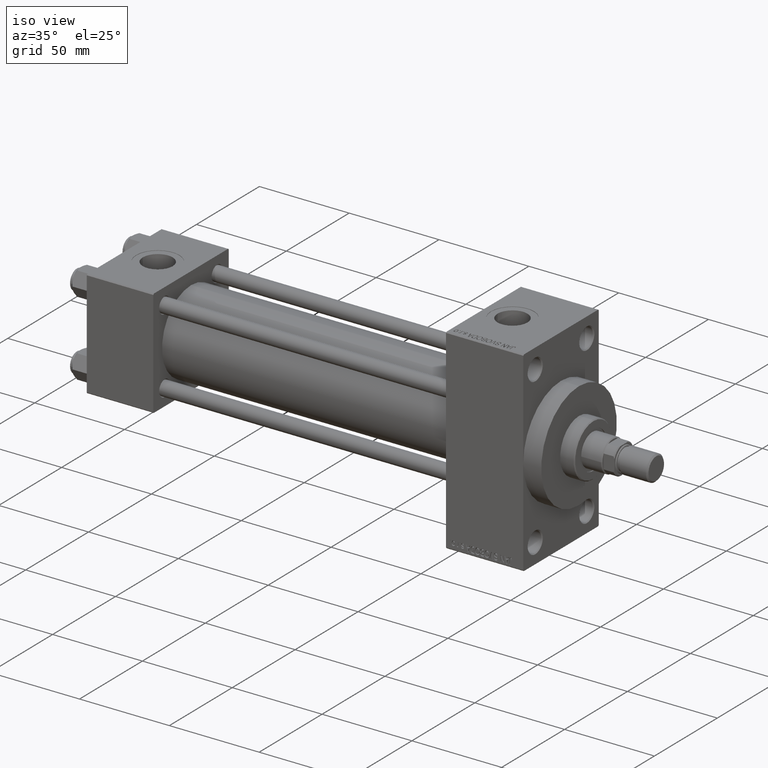
[diagram: clean part render]
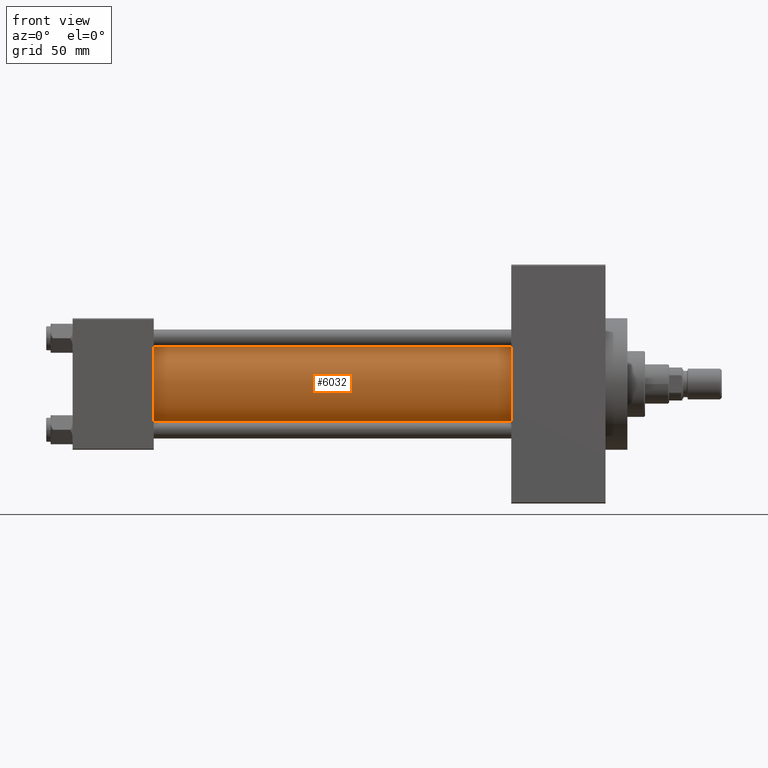
[diagram: tour spotlight — one face highlighted and labeled with its STEP entity id]
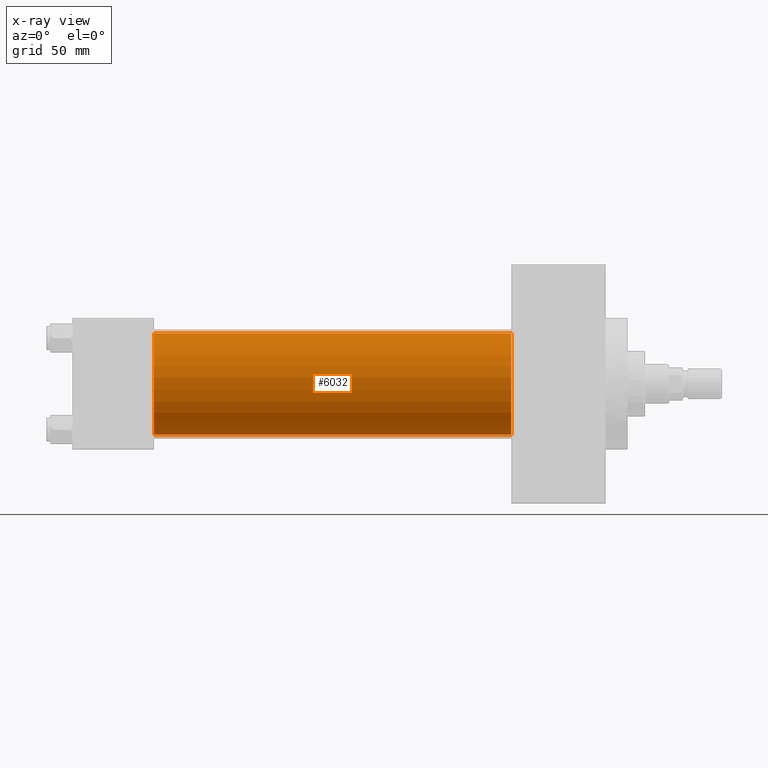
[diagram: x-ray of the same camera — body ghosted, this tour face saturated]
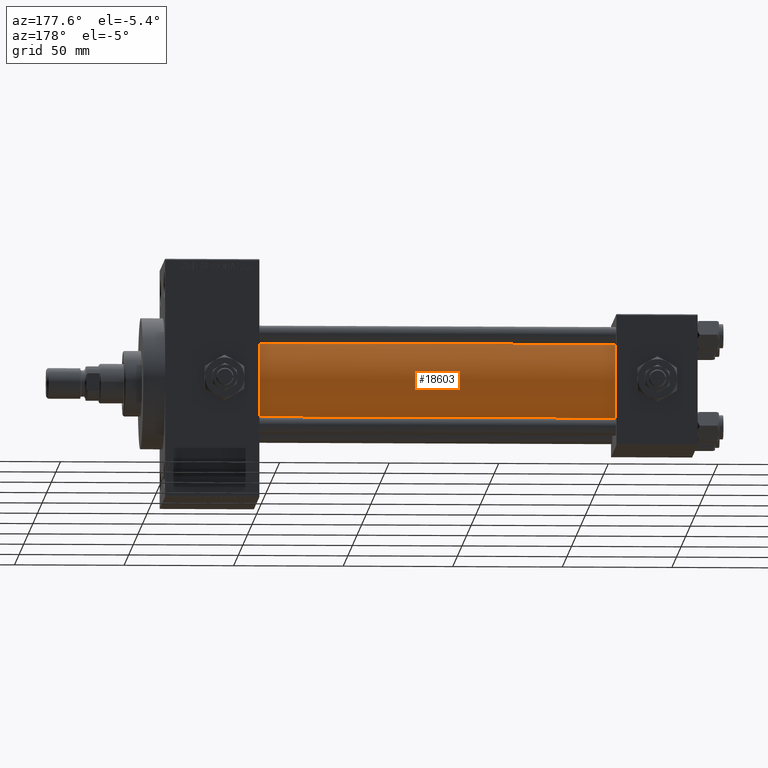
[diagram: tour spotlight — one face highlighted and labeled with its STEP entity id]
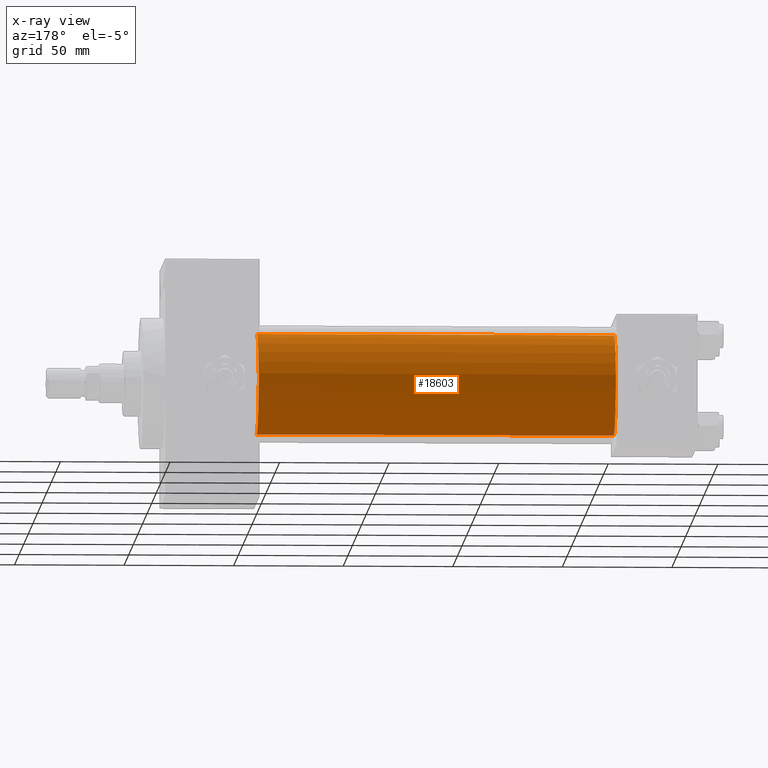
[diagram: x-ray of the same camera — body ghosted, this tour face saturated]
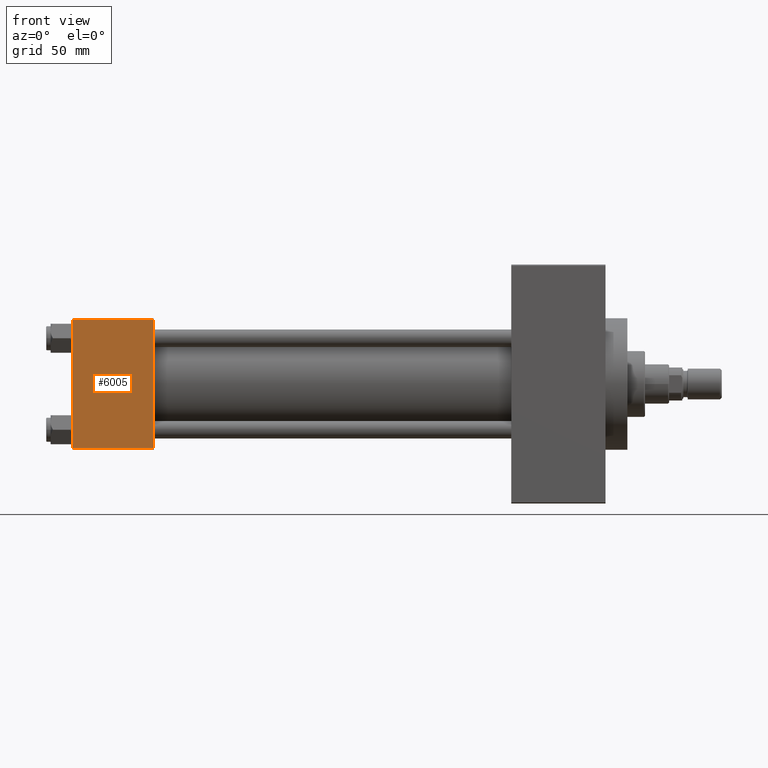
[diagram: tour spotlight — one face highlighted and labeled with its STEP entity id]
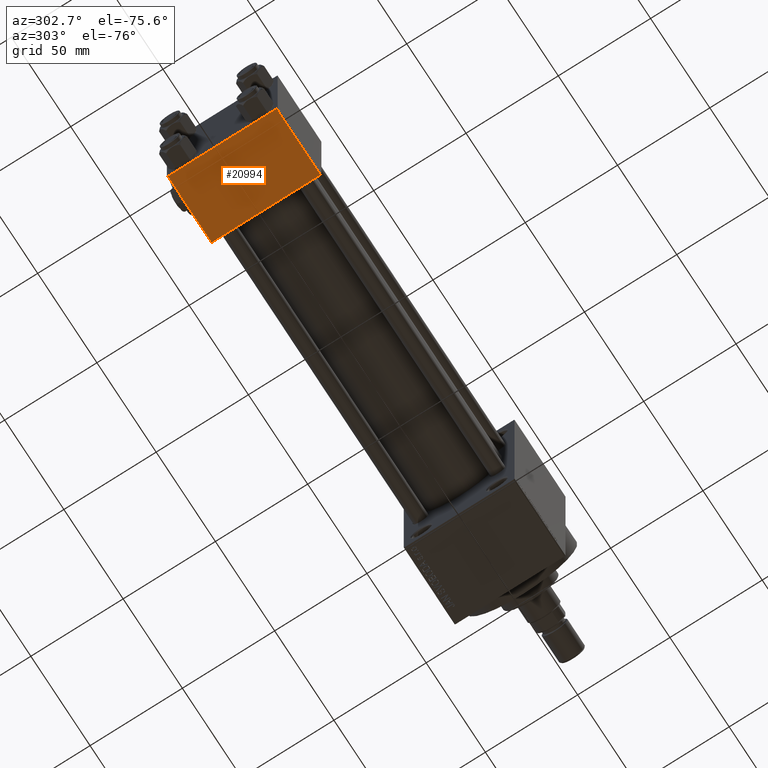
[diagram: tour spotlight — one face highlighted and labeled with its STEP entity id]
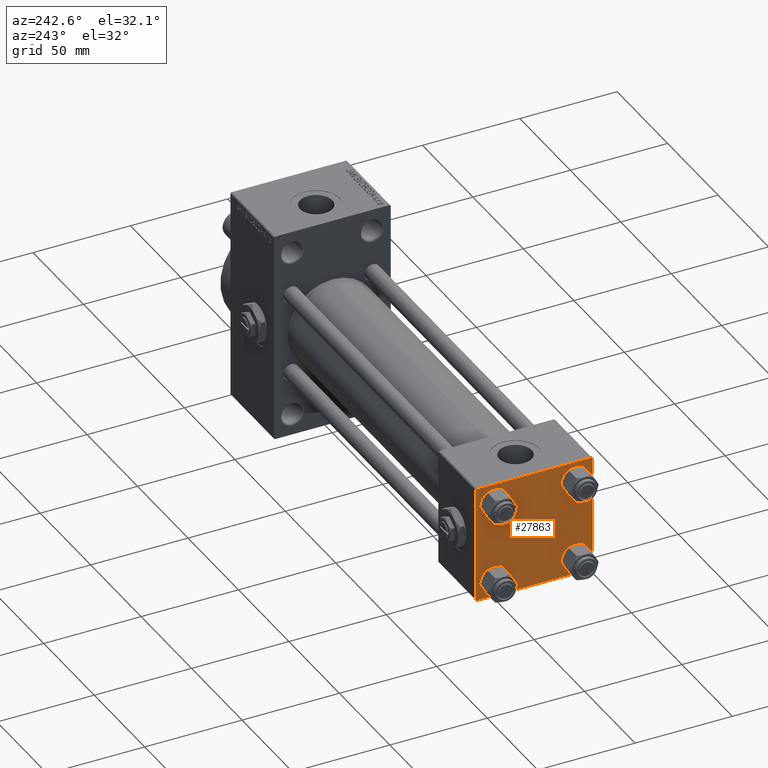
[diagram: tour spotlight — one face highlighted and labeled with its STEP entity id]
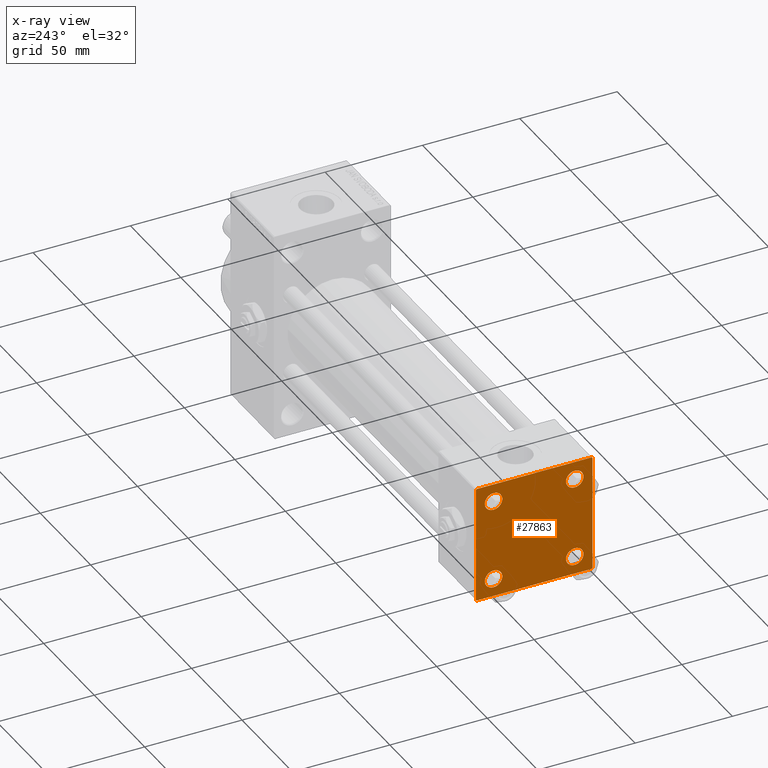
[diagram: x-ray of the same camera — body ghosted, this tour face saturated]
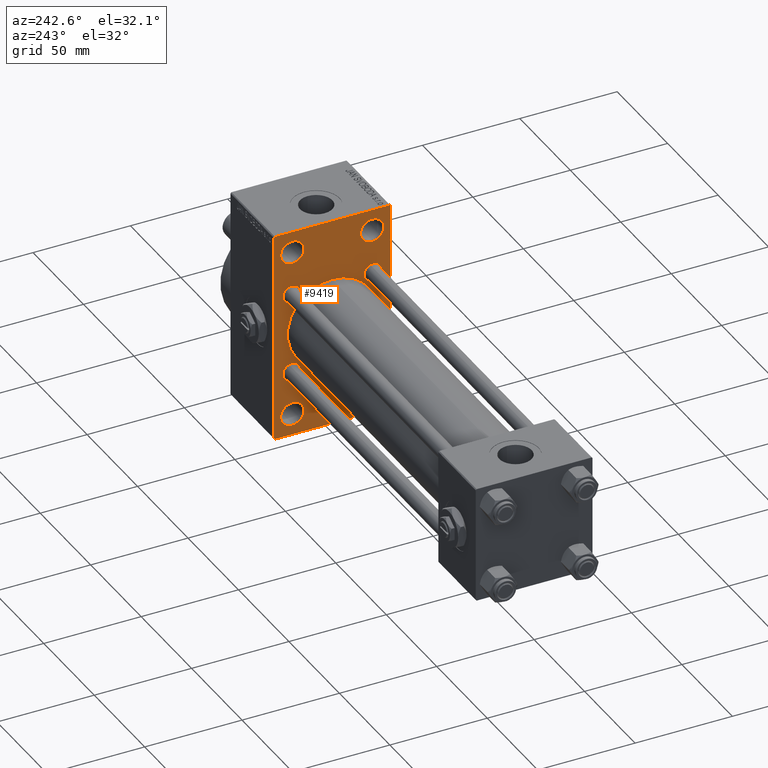
[diagram: tour spotlight — one face highlighted and labeled with its STEP entity id]
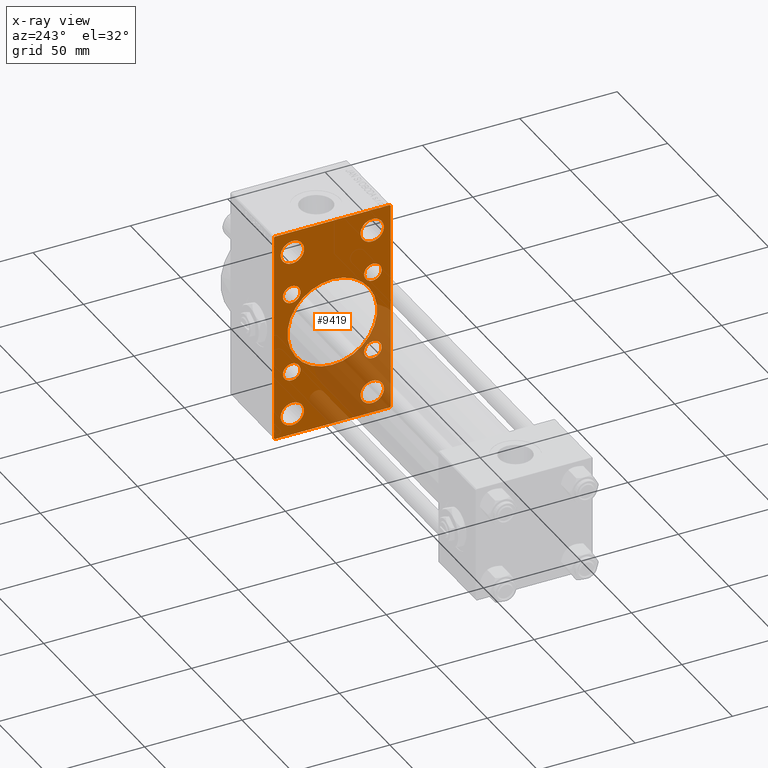
[diagram: x-ray of the same camera — body ghosted, this tour face saturated]
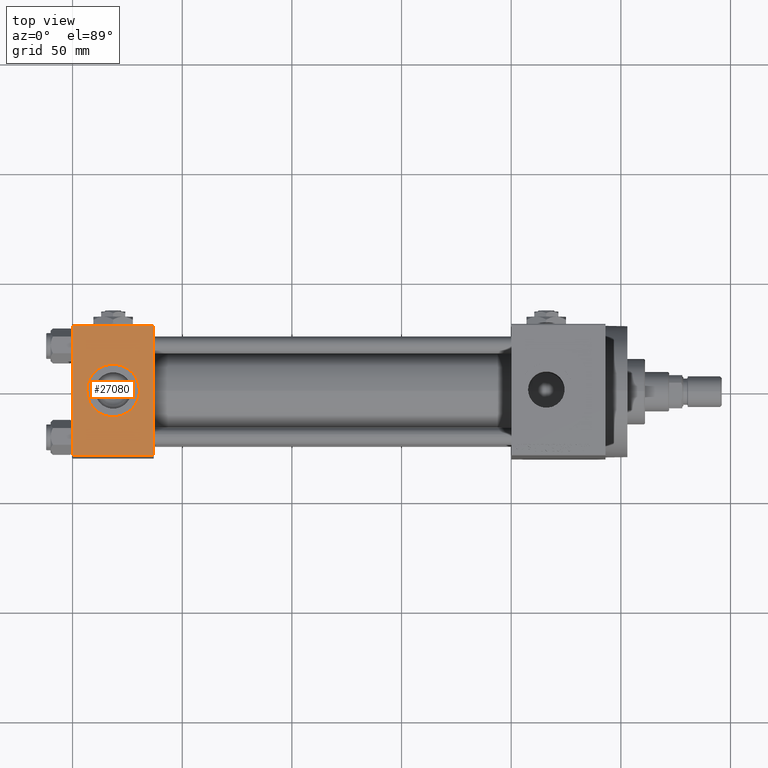
[diagram: tour spotlight — one face highlighted and labeled with its STEP entity id]
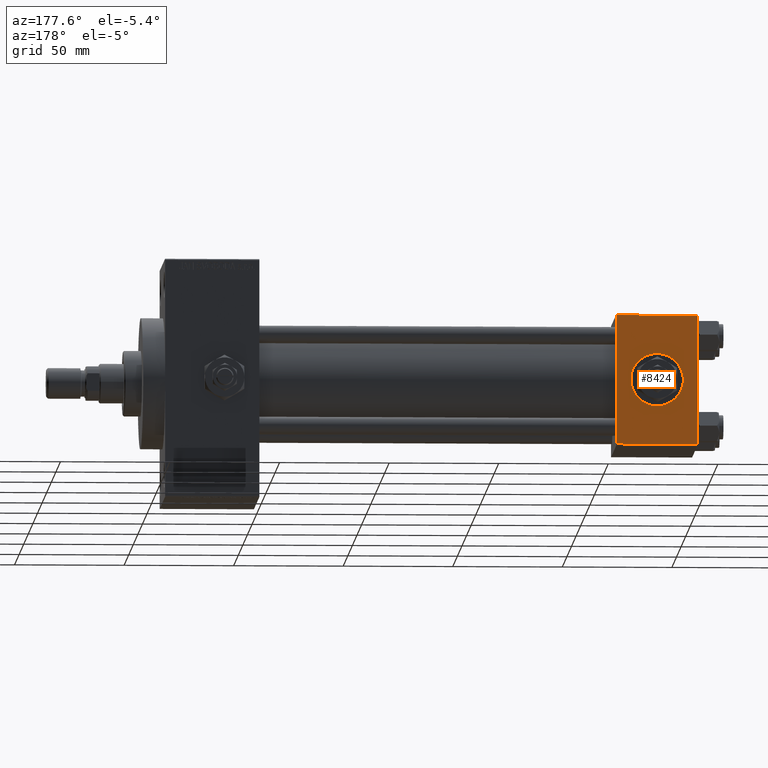
[diagram: tour spotlight — one face highlighted and labeled with its STEP entity id]
A machine part: a face-by-face anatomy tour. The part has 1219 B-rep faces; the first image is the clean iso view, then the 8 largest visible faces are spotlighted one at a time (largest first), each with its STEP entity span.

Face 1 — front view, entity #6032. An x-ray twin of the same camera follows (body ghosted, this face saturated) — the face is partly hidden behind the body. In plain terms, the highlighted cylindrical surface (partial cylindrical patch) has radius 23 mm, axis along (-1, -0, -0).
Definition (entity closure, byte-faithful):
#705 = ORIENTED_EDGE ( 'NONE', *, *, #33498, .F. ) ;
#938 = DIRECTION ( 'NONE',  ( 0.000000000000000000, 0.000000000000000000, -1.000000000000000000 ) ) ;
#3285 = VECTOR ( 'NONE', #48437, 1000.000000000000000 ) ;
#3454 = VERTEX_POINT ( 'NONE', #32094 ) ;
#4859 = AXIS2_PLACEMENT_3D ( 'NONE', #20709, #36067, #38849 ) ;
#4936 = VERTEX_POINT ( 'NONE', #36387 ) ;
#5685 = DIRECTION ( 'NONE',  ( -1.000000000000000000, -0.000000000000000000, -0.000000000000000000 ) ) ;
#6032 = ADVANCED_FACE ( 'NONE', ( #32645 ), #21295, .T. ) ;
#6089 = AXIS2_PLACEMENT_3D ( 'NONE', #39939, #5685, #47972 ) ;
#9236 = CARTESIAN_POINT ( 'NONE',  ( 200.0000000000000000, -2.602085213965210642E-15, 0.000000000000000000 ) ) ;
#9237 = CARTESIAN_POINT ( 'NONE',  ( 200.0000000000000000, 2.146024240737016609E-16, -23.00000000000000000 ) ) ;
#9676 = CIRCLE ( 'NONE', #4859, 23.00000000000000000 ) ;
#12279 = EDGE_CURVE ( 'NONE', #3454, #43097, #15107, .T. ) ;
#15094 = ORIENTED_EDGE ( 'NONE', *, *, #21839, .T. ) ;
#15107 = CIRCLE ( 'NONE', #23972, 23.00000000000000000 ) ;
#19818 = LINE ( 'NONE', #9237, #23631 ) ;
#20061 = CARTESIAN_POINT ( 'NONE',  ( 37.00000000000000711, -2.602085213965210642E-15, 23.00000000000000000 ) ) ;
#20709 = CARTESIAN_POINT ( 'NONE',  ( 37.00000000000000711, -2.602085213965210642E-15, 0.000000000000000000 ) ) ;
#21295 = CYLINDRICAL_SURFACE ( 'NONE', #6089, 23.00000000000000000 ) ;
#21839 = EDGE_CURVE ( 'NONE', #24435, #4936, #9676, .T. ) ;
#22577 = EDGE_CURVE ( 'NONE', #3454, #24435, #28827, .T. ) ;
#23631 = VECTOR ( 'NONE', #27370, 1000.000000000000000 ) ;
#23972 = AXIS2_PLACEMENT_3D ( 'NONE', #9236, #36417, #938 ) ;
#24435 = VERTEX_POINT ( 'NONE', #20061 ) ;
#25998 = CARTESIAN_POINT ( 'NONE',  ( 200.0000000000000000, 2.146024240737016609E-16, -23.00000000000000000 ) ) ;
#27370 = DIRECTION ( 'NONE',  ( -1.000000000000000000, -0.000000000000000000, -0.000000000000000000 ) ) ;
#28827 = LINE ( 'NONE', #47956, #3285 ) ;
#30919 = EDGE_LOOP ( 'NONE', ( #705, #33152, #31833, #15094 ) ) ;
#31833 = ORIENTED_EDGE ( 'NONE', *, *, #22577, .T. ) ;
#32094 = CARTESIAN_POINT ( 'NONE',  ( 200.0000000000000000, -2.602085213965210642E-15, 23.00000000000000000 ) ) ;
#32645 = FACE_OUTER_BOUND ( 'NONE', #30919, .T. ) ;
#33152 = ORIENTED_EDGE ( 'NONE', *, *, #12279, .F. ) ;
#33498 = EDGE_CURVE ( 'NONE', #43097, #4936, #19818, .T. ) ;
#36067 = DIRECTION ( 'NONE',  ( 1.000000000000000000, -0.000000000000000000, 0.000000000000000000 ) ) ;
#36387 = CARTESIAN_POINT ( 'NONE',  ( 37.00000000000000711, 2.146024240737016609E-16, -23.00000000000000000 ) ) ;
#36417 = DIRECTION ( 'NONE',  ( 1.000000000000000000, 0.000000000000000000, 0.000000000000000000 ) ) ;
#38849 = DIRECTION ( 'NONE',  ( 0.000000000000000000, 0.000000000000000000, 1.000000000000000000 ) ) ;
#39939 = CARTESIAN_POINT ( 'NONE',  ( 200.0000000000000000, -2.602085213965210642E-15, 0.000000000000000000 ) ) ;
#43097 = VERTEX_POINT ( 'NONE', #25998 ) ;
#47956 = CARTESIAN_POINT ( 'NONE',  ( 200.0000000000000000, -2.602085213965210642E-15, 23.00000000000000000 ) ) ;
#47972 = DIRECTION ( 'NONE',  ( 0.000000000000000000, 0.000000000000000000, 1.000000000000000000 ) ) ;
#48437 = DIRECTION ( 'NONE',  ( -1.000000000000000000, -0.000000000000000000, -0.000000000000000000 ) ) ;

Face 2 — auxiliary view, entity #18603. An x-ray twin of the same camera follows (body ghosted, this face saturated) — the face is partly hidden behind the body. In plain terms, the highlighted cylindrical surface (partial cylindrical patch) has radius 23 mm, axis along (-1, -0, -0).
Definition (entity closure, byte-faithful):
#613 = DIRECTION ( 'NONE',  ( -1.000000000000000000, -0.000000000000000000, -0.000000000000000000 ) ) ;
#3285 = VECTOR ( 'NONE', #48437, 1000.000000000000000 ) ;
#3454 = VERTEX_POINT ( 'NONE', #32094 ) ;
#4936 = VERTEX_POINT ( 'NONE', #36387 ) ;
#7296 = CIRCLE ( 'NONE', #41871, 23.00000000000000000 ) ;
#8400 = DIRECTION ( 'NONE',  ( 0.000000000000000000, 0.000000000000000000, 1.000000000000000000 ) ) ;
#9237 = CARTESIAN_POINT ( 'NONE',  ( 200.0000000000000000, 2.146024240737016609E-16, -23.00000000000000000 ) ) ;
#10966 = ORIENTED_EDGE ( 'NONE', *, *, #16802, .T. ) ;
#16802 = EDGE_CURVE ( 'NONE', #4936, #24435, #44976, .T. ) ;
#17400 = CARTESIAN_POINT ( 'NONE',  ( 200.0000000000000000, -2.602085213965210642E-15, 0.000000000000000000 ) ) ;
#18603 = ADVANCED_FACE ( 'NONE', ( #23513 ), #38866, .T. ) ;
#19729 = CARTESIAN_POINT ( 'NONE',  ( 200.0000000000000000, -2.602085213965210642E-15, 0.000000000000000000 ) ) ;
#19818 = LINE ( 'NONE', #9237, #23631 ) ;
#20061 = CARTESIAN_POINT ( 'NONE',  ( 37.00000000000000711, -2.602085213965210642E-15, 23.00000000000000000 ) ) ;
#21684 = AXIS2_PLACEMENT_3D ( 'NONE', #28697, #47820, #44057 ) ;
#22577 = EDGE_CURVE ( 'NONE', #3454, #24435, #28827, .T. ) ;
#23251 = EDGE_CURVE ( 'NONE', #43097, #3454, #7296, .T. ) ;
#23513 = FACE_OUTER_BOUND ( 'NONE', #43508, .T. ) ;
#23631 = VECTOR ( 'NONE', #27370, 1000.000000000000000 ) ;
#24435 = VERTEX_POINT ( 'NONE', #20061 ) ;
#25998 = CARTESIAN_POINT ( 'NONE',  ( 200.0000000000000000, 2.146024240737016609E-16, -23.00000000000000000 ) ) ;
#27370 = DIRECTION ( 'NONE',  ( -1.000000000000000000, -0.000000000000000000, -0.000000000000000000 ) ) ;
#28697 = CARTESIAN_POINT ( 'NONE',  ( 37.00000000000000711, -2.602085213965210642E-15, 0.000000000000000000 ) ) ;
#28827 = LINE ( 'NONE', #47956, #3285 ) ;
#32094 = CARTESIAN_POINT ( 'NONE',  ( 200.0000000000000000, -2.602085213965210642E-15, 23.00000000000000000 ) ) ;
#33498 = EDGE_CURVE ( 'NONE', #43097, #4936, #19818, .T. ) ;
#36387 = CARTESIAN_POINT ( 'NONE',  ( 37.00000000000000711, 2.146024240737016609E-16, -23.00000000000000000 ) ) ;
#38866 = CYLINDRICAL_SURFACE ( 'NONE', #46552, 23.00000000000000000 ) ;
#39210 = ORIENTED_EDGE ( 'NONE', *, *, #22577, .F. ) ;
#39913 = ORIENTED_EDGE ( 'NONE', *, *, #33498, .T. ) ;
#40874 = ORIENTED_EDGE ( 'NONE', *, *, #23251, .F. ) ;
#41871 = AXIS2_PLACEMENT_3D ( 'NONE', #17400, #48317, #48572 ) ;
#43097 = VERTEX_POINT ( 'NONE', #25998 ) ;
#43508 = EDGE_LOOP ( 'NONE', ( #40874, #39913, #10966, #39210 ) ) ;
#44057 = DIRECTION ( 'NONE',  ( 0.000000000000000000, 0.000000000000000000, 1.000000000000000000 ) ) ;
#44976 = CIRCLE ( 'NONE', #21684, 23.00000000000000000 ) ;
#46552 = AXIS2_PLACEMENT_3D ( 'NONE', #19729, #613, #8400 ) ;
#47820 = DIRECTION ( 'NONE',  ( 1.000000000000000000, -0.000000000000000000, 0.000000000000000000 ) ) ;
#47956 = CARTESIAN_POINT ( 'NONE',  ( 200.0000000000000000, -2.602085213965210642E-15, 23.00000000000000000 ) ) ;
#48317 = DIRECTION ( 'NONE',  ( 1.000000000000000000, 0.000000000000000000, 0.000000000000000000 ) ) ;
#48437 = DIRECTION ( 'NONE',  ( -1.000000000000000000, -0.000000000000000000, -0.000000000000000000 ) ) ;
#48572 = DIRECTION ( 'NONE',  ( 0.000000000000000000, 0.000000000000000000, -1.000000000000000000 ) ) ;

Face 3 — front view, entity #6005. In plain terms, the highlighted planar face has unit normal (0, 1, 0).
Definition (entity closure, byte-faithful):
#922 = CARTESIAN_POINT ( 'NONE',  ( 37.00000000000000000, -30.00000000000000000, 29.99999999999999289 ) ) ;
#2884 = AXIS2_PLACEMENT_3D ( 'NONE', #922, #28092, #21537 ) ;
#2939 = EDGE_CURVE ( 'NONE', #35692, #30372, #41556, .T. ) ;
#3215 = ORIENTED_EDGE ( 'NONE', *, *, #2939, .T. ) ;
#4690 = FACE_OUTER_BOUND ( 'NONE', #11094, .T. ) ;
#6005 = ADVANCED_FACE ( 'NONE', ( #4690 ), #35408, .F. ) ;
#6169 = LINE ( 'NONE', #40656, #6504 ) ;
#6504 = VECTOR ( 'NONE', #14204, 1000.000000000000000 ) ;
#8435 = CARTESIAN_POINT ( 'NONE',  ( 0.000000000000000000, -30.00000000000000000, 29.49999999999999289 ) ) ;
#9301 = CARTESIAN_POINT ( 'NONE',  ( 37.00000000000000000, -30.00000000000000000, 29.49999999999999289 ) ) ;
#11094 = EDGE_LOOP ( 'NONE', ( #3215, #36309, #34023, #45041 ) ) ;
#11601 = VECTOR ( 'NONE', #38029, 1000.000000000000000 ) ;
#12244 = DIRECTION ( 'NONE',  ( 0.000000000000000000, 0.000000000000000000, -1.000000000000000000 ) ) ;
#14204 = DIRECTION ( 'NONE',  ( 1.000000000000000000, 0.000000000000000000, 0.000000000000000000 ) ) ;
#14596 = VECTOR ( 'NONE', #12244, 1000.000000000000000 ) ;
#15622 = CARTESIAN_POINT ( 'NONE',  ( 0.000000000000000000, -30.00000000000000000, 29.99999999999999289 ) ) ;
#21537 = DIRECTION ( 'NONE',  ( 0.000000000000000000, -0.000000000000000000, 1.000000000000000000 ) ) ;
#22180 = CARTESIAN_POINT ( 'NONE',  ( 37.00000000000000000, -30.00000000000000000, 29.49999999999999289 ) ) ;
#22610 = EDGE_CURVE ( 'NONE', #30372, #23958, #6169, .T. ) ;
#23958 = VERTEX_POINT ( 'NONE', #26235 ) ;
#24203 = VERTEX_POINT ( 'NONE', #9301 ) ;
#24401 = EDGE_CURVE ( 'NONE', #24203, #23958, #47245, .T. ) ;
#26235 = CARTESIAN_POINT ( 'NONE',  ( 37.00000000000000000, -30.00000000000000000, -29.50000000000001776 ) ) ;
#26445 = LINE ( 'NONE', #22180, #43829 ) ;
#28092 = DIRECTION ( 'NONE',  ( -0.000000000000000000, 1.000000000000000000, 0.000000000000000000 ) ) ;
#30372 = VERTEX_POINT ( 'NONE', #35093 ) ;
#34023 = ORIENTED_EDGE ( 'NONE', *, *, #24401, .F. ) ;
#34976 = EDGE_CURVE ( 'NONE', #24203, #35692, #26445, .T. ) ;
#35093 = CARTESIAN_POINT ( 'NONE',  ( 0.000000000000000000, -30.00000000000000000, -29.50000000000001776 ) ) ;
#35408 = PLANE ( 'NONE',  #2884 ) ;
#35677 = CARTESIAN_POINT ( 'NONE',  ( 37.00000000000000000, -30.00000000000000000, 29.99999999999999289 ) ) ;
#35692 = VERTEX_POINT ( 'NONE', #8435 ) ;
#36309 = ORIENTED_EDGE ( 'NONE', *, *, #22610, .T. ) ;
#37538 = DIRECTION ( 'NONE',  ( -1.000000000000000000, 0.000000000000000000, 0.000000000000000000 ) ) ;
#38029 = DIRECTION ( 'NONE',  ( 0.000000000000000000, 0.000000000000000000, -1.000000000000000000 ) ) ;
#40656 = CARTESIAN_POINT ( 'NONE',  ( 37.00000000000000000, -30.00000000000000000, -29.50000000000001776 ) ) ;
#41556 = LINE ( 'NONE', #15622, #11601 ) ;
#43829 = VECTOR ( 'NONE', #37538, 1000.000000000000000 ) ;
#45041 = ORIENTED_EDGE ( 'NONE', *, *, #34976, .T. ) ;
#47245 = LINE ( 'NONE', #35677, #14596 ) ;

Face 4 — auxiliary view, entity #20994. In plain terms, the highlighted planar face has unit normal (0, 0, -1).
Definition (entity closure, byte-faithful):
#1213 = VERTEX_POINT ( 'NONE', #30393 ) ;
#3225 = ORIENTED_EDGE ( 'NONE', *, *, #19954, .T. ) ;
#4954 = DIRECTION ( 'NONE',  ( 0.000000000000000000, -1.000000000000000000, -1.156482317317871725E-16 ) ) ;
#5464 = CARTESIAN_POINT ( 'NONE',  ( 37.00000000000000000, 29.99999999999999289, -30.00000000000000000 ) ) ;
#7449 = EDGE_CURVE ( 'NONE', #1213, #18958, #8986, .T. ) ;
#7482 = CARTESIAN_POINT ( 'NONE',  ( 37.00000000000000000, 29.99999999999999289, -30.00000000000000000 ) ) ;
#8986 = LINE ( 'NONE', #5464, #43109 ) ;
#9451 = CARTESIAN_POINT ( 'NONE',  ( 0.000000000000000000, 29.99999999999999289, -30.00000000000000000 ) ) ;
#10081 = CARTESIAN_POINT ( 'NONE',  ( 37.00000000000000000, -29.50000000000000000, -30.00000000000000711 ) ) ;
#11265 = EDGE_LOOP ( 'NONE', ( #33760, #3225, #45785, #42858 ) ) ;
#11402 = CARTESIAN_POINT ( 'NONE',  ( 0.000000000000000000, -29.50000000000001066, -30.00000000000000711 ) ) ;
#12799 = VERTEX_POINT ( 'NONE', #23881 ) ;
#13380 = EDGE_CURVE ( 'NONE', #18958, #27669, #30307, .T. ) ;
#14849 = LINE ( 'NONE', #38011, #40949 ) ;
#15294 = DIRECTION ( 'NONE',  ( 0.000000000000000000, 1.000000000000000000, 1.156482317317871725E-16 ) ) ;
#15548 = FACE_OUTER_BOUND ( 'NONE', #11265, .T. ) ;
#18958 = VERTEX_POINT ( 'NONE', #10081 ) ;
#19345 = VECTOR ( 'NONE', #24804, 1000.000000000000000 ) ;
#19954 = EDGE_CURVE ( 'NONE', #12799, #1213, #14849, .T. ) ;
#20534 = LINE ( 'NONE', #9451, #19345 ) ;
#20994 = ADVANCED_FACE ( 'NONE', ( #15548 ), #49771, .T. ) ;
#22410 = EDGE_CURVE ( 'NONE', #12799, #27669, #20534, .T. ) ;
#23881 = CARTESIAN_POINT ( 'NONE',  ( 0.000000000000000000, 29.49999999999997868, -30.00000000000000000 ) ) ;
#24804 = DIRECTION ( 'NONE',  ( 0.000000000000000000, -1.000000000000000000, -1.156482317317871725E-16 ) ) ;
#25787 = CARTESIAN_POINT ( 'NONE',  ( 0.000000000000000000, -29.50000000000000000, -30.00000000000000711 ) ) ;
#26524 = DIRECTION ( 'NONE',  ( -1.000000000000000000, 0.000000000000000000, 0.000000000000000000 ) ) ;
#27669 = VERTEX_POINT ( 'NONE', #25787 ) ;
#30203 = DIRECTION ( 'NONE',  ( 1.000000000000000000, 0.000000000000000000, 0.000000000000000000 ) ) ;
#30307 = LINE ( 'NONE', #11402, #44094 ) ;
#30393 = CARTESIAN_POINT ( 'NONE',  ( 37.00000000000000000, 29.49999999999997868, -30.00000000000000000 ) ) ;
#33760 = ORIENTED_EDGE ( 'NONE', *, *, #22410, .F. ) ;
#38011 = CARTESIAN_POINT ( 'NONE',  ( 37.00000000000000000, 29.49999999999997868, -30.00000000000000000 ) ) ;
#38216 = DIRECTION ( 'NONE',  ( 0.000000000000000000, 1.156482317317871725E-16, -1.000000000000000000 ) ) ;
#40949 = VECTOR ( 'NONE', #30203, 1000.000000000000000 ) ;
#42858 = ORIENTED_EDGE ( 'NONE', *, *, #13380, .T. ) ;
#43109 = VECTOR ( 'NONE', #4954, 1000.000000000000000 ) ;
#43404 = AXIS2_PLACEMENT_3D ( 'NONE', #7482, #38216, #15294 ) ;
#44094 = VECTOR ( 'NONE', #26524, 1000.000000000000000 ) ;
#45785 = ORIENTED_EDGE ( 'NONE', *, *, #7449, .T. ) ;
#49771 = PLANE ( 'NONE',  #43404 ) ;

Face 5 — auxiliary view, entity #27863. An x-ray twin of the same camera follows (body ghosted, this face saturated) — the face is partly hidden behind the body. In plain terms, the highlighted planar face has unit normal (-1, 0, 0).
Definition (entity closure, byte-faithful):
#443 = ORIENTED_EDGE ( 'NONE', *, *, #17987, .T. ) ;
#574 = CARTESIAN_POINT ( 'NONE',  ( 0.000000000000000000, -20.84999999999999076, 20.85000000000000497 ) ) ;
#811 = DIRECTION ( 'NONE',  ( 1.000000000000000000, -0.000000000000000000, 0.000000000000000000 ) ) ;
#912 = VECTOR ( 'NONE', #3219, 1000.000000000000114 ) ;
#1131 = AXIS2_PLACEMENT_3D ( 'NONE', #18450, #46557, #21976 ) ;
#1159 = EDGE_LOOP ( 'NONE', ( #4199, #7734 ) ) ;
#1171 = VECTOR ( 'NONE', #8108, 1000.000000000000000 ) ;
#1355 = DIRECTION ( 'NONE',  ( -1.000000000000000000, 0.000000000000000000, -0.000000000000000000 ) ) ;
#1641 = VERTEX_POINT ( 'NONE', #21246 ) ;
#2216 = ORIENTED_EDGE ( 'NONE', *, *, #9782, .F. ) ;
#2770 = LINE ( 'NONE', #6061, #27820 ) ;
#2939 = EDGE_CURVE ( 'NONE', #35692, #30372, #41556, .T. ) ;
#3219 = DIRECTION ( 'NONE',  ( 0.000000000000000000, 0.7071067811865474617, -0.7071067811865474617 ) ) ;
#3338 = CARTESIAN_POINT ( 'NONE',  ( 0.000000000000000000, 29.99999999999999289, 29.50000000000000000 ) ) ;
#4199 = ORIENTED_EDGE ( 'NONE', *, *, #33119, .T. ) ;
#4552 = VERTEX_POINT ( 'NONE', #34276 ) ;
#5018 = VERTEX_POINT ( 'NONE', #20088 ) ;
#5115 = FACE_OUTER_BOUND ( 'NONE', #40221, .T. ) ;
#6061 = CARTESIAN_POINT ( 'NONE',  ( 0.000000000000000000, 29.99999999999999289, 30.00000000000000000 ) ) ;
#6159 = DIRECTION ( 'NONE',  ( 1.000000000000000000, -0.000000000000000000, 0.000000000000000000 ) ) ;
#6208 = CARTESIAN_POINT ( 'NONE',  ( 0.000000000000000000, 20.84999999999999787, 20.85000000000000142 ) ) ;
#6723 = VECTOR ( 'NONE', #45252, 1000.000000000000114 ) ;
#7151 = AXIS2_PLACEMENT_3D ( 'NONE', #19538, #34908, #31126 ) ;
#7158 = AXIS2_PLACEMENT_3D ( 'NONE', #574, #811, #16667 ) ;
#7496 = ORIENTED_EDGE ( 'NONE', *, *, #33925, .T. ) ;
#7734 = ORIENTED_EDGE ( 'NONE', *, *, #25751, .T. ) ;
#8108 = DIRECTION ( 'NONE',  ( 0.000000000000000000, 0.000000000000000000, -1.000000000000000000 ) ) ;
#8435 = CARTESIAN_POINT ( 'NONE',  ( 0.000000000000000000, -30.00000000000000000, 29.49999999999999289 ) ) ;
#8754 = EDGE_CURVE ( 'NONE', #31983, #41231, #10059, .T. ) ;
#9451 = CARTESIAN_POINT ( 'NONE',  ( 0.000000000000000000, 29.99999999999999289, -30.00000000000000000 ) ) ;
#9559 = CARTESIAN_POINT ( 'NONE',  ( -0.000000000000000000, -29.74999999999999645, 29.74999999999999645 ) ) ;
#9782 = EDGE_CURVE ( 'NONE', #4552, #22482, #2770, .T. ) ;
#9881 = DIRECTION ( 'NONE',  ( -0.000000000000000000, 0.000000000000000000, 1.000000000000000000 ) ) ;
#10059 = CIRCLE ( 'NONE', #21316, 4.500000000000017764 ) ;
#10528 = ORIENTED_EDGE ( 'NONE', *, *, #44680, .T. ) ;
#10595 = LINE ( 'NONE', #29987, #44229 ) ;
#10754 = CARTESIAN_POINT ( 'NONE',  ( 0.000000000000000000, -20.84999999999999076, 16.34999999999998721 ) ) ;
#11601 = VECTOR ( 'NONE', #38029, 1000.000000000000000 ) ;
#12079 = ORIENTED_EDGE ( 'NONE', *, *, #8754, .T. ) ;
#12412 = DIRECTION ( 'NONE',  ( 0.000000000000000000, 0.000000000000000000, 1.000000000000000000 ) ) ;
#12799 = VERTEX_POINT ( 'NONE', #23881 ) ;
#13172 = FACE_BOUND ( 'NONE', #43213, .T. ) ;
#13827 = CIRCLE ( 'NONE', #41979, 4.500000000000017764 ) ;
#14093 = DIRECTION ( 'NONE',  ( 0.000000000000000000, -1.000000000000000000, -1.156482317317871725E-16 ) ) ;
#14295 = CARTESIAN_POINT ( 'NONE',  ( 0.000000000000000000, 29.74999999999999645, 29.74999999999999645 ) ) ;
#15089 = CARTESIAN_POINT ( 'NONE',  ( 0.000000000000000000, 20.84999999999999787, 25.35000000000001918 ) ) ;
#15583 = EDGE_CURVE ( 'NONE', #40502, #24244, #31286, .T. ) ;
#15622 = CARTESIAN_POINT ( 'NONE',  ( 0.000000000000000000, -30.00000000000000000, 29.99999999999999289 ) ) ;
#16297 = CARTESIAN_POINT ( 'NONE',  ( 0.000000000000000000, -20.84999999999999076, -20.85000000000000497 ) ) ;
#16667 = DIRECTION ( 'NONE',  ( 0.000000000000000000, 0.000000000000000000, 1.000000000000000000 ) ) ;
#16703 = EDGE_LOOP ( 'NONE', ( #47582, #30164 ) ) ;
#17492 = DIRECTION ( 'NONE',  ( 1.000000000000000000, -0.000000000000000000, 0.000000000000000000 ) ) ;
#17987 = EDGE_CURVE ( 'NONE', #25145, #12799, #10595, .T. ) ;
#18320 = EDGE_CURVE ( 'NONE', #5018, #1641, #36108, .T. ) ;
#18450 = CARTESIAN_POINT ( 'NONE',  ( 0.000000000000000000, 20.84999999999999787, -20.85000000000000142 ) ) ;
#19345 = VECTOR ( 'NONE', #24804, 1000.000000000000000 ) ;
#19538 = CARTESIAN_POINT ( 'NONE',  ( 0.000000000000000000, -20.84999999999999076, -20.85000000000000497 ) ) ;
#20088 = CARTESIAN_POINT ( 'NONE',  ( 0.000000000000000000, -20.84999999999999076, -16.34999999999998721 ) ) ;
#20534 = LINE ( 'NONE', #9451, #19345 ) ;
#21246 = CARTESIAN_POINT ( 'NONE',  ( 0.000000000000000000, -20.84999999999999076, -25.35000000000002274 ) ) ;
#21316 = AXIS2_PLACEMENT_3D ( 'NONE', #40644, #6159, #36870 ) ;
#21476 = FACE_BOUND ( 'NONE', #16703, .T. ) ;
#21976 = DIRECTION ( 'NONE',  ( 0.000000000000000000, 0.000000000000000000, 1.000000000000000000 ) ) ;
#22349 = CARTESIAN_POINT ( 'NONE',  ( 0.000000000000000000, -29.75000000000001066, -29.75000000000001066 ) ) ;
#22410 = EDGE_CURVE ( 'NONE', #12799, #27669, #20534, .T. ) ;
#22482 = VERTEX_POINT ( 'NONE', #47454 ) ;
#23862 = DIRECTION ( 'NONE',  ( 1.000000000000000000, -0.000000000000000000, 0.000000000000000000 ) ) ;
#23881 = CARTESIAN_POINT ( 'NONE',  ( 0.000000000000000000, 29.49999999999997868, -30.00000000000000000 ) ) ;
#24214 = CARTESIAN_POINT ( 'NONE',  ( 0.000000000000000000, 29.99999999999999289, 30.00000000000000000 ) ) ;
#24244 = VERTEX_POINT ( 'NONE', #10754 ) ;
#24517 = CARTESIAN_POINT ( 'NONE',  ( 0.000000000000000000, 20.84999999999999787, 16.34999999999998366 ) ) ;
#24804 = DIRECTION ( 'NONE',  ( 0.000000000000000000, -1.000000000000000000, -1.156482317317871725E-16 ) ) ;
#25145 = VERTEX_POINT ( 'NONE', #46387 ) ;
#25481 = DIRECTION ( 'NONE',  ( -0.000000000000000000, -0.7071067811865574537, -0.7071067811865376918 ) ) ;
#25751 = EDGE_CURVE ( 'NONE', #45109, #39701, #41985, .T. ) ;
#25787 = CARTESIAN_POINT ( 'NONE',  ( 0.000000000000000000, -29.50000000000000000, -30.00000000000000711 ) ) ;
#26371 = LINE ( 'NONE', #22349, #6723 ) ;
#27532 = CARTESIAN_POINT ( 'NONE',  ( 0.000000000000000000, -20.84999999999999076, 20.85000000000000497 ) ) ;
#27669 = VERTEX_POINT ( 'NONE', #25787 ) ;
#27820 = VECTOR ( 'NONE', #14093, 1000.000000000000000 ) ;
#27856 = CARTESIAN_POINT ( 'NONE',  ( 0.000000000000000000, 20.84999999999999787, -25.35000000000001918 ) ) ;
#27863 = ADVANCED_FACE ( 'NONE', ( #43644, #21476, #47659, #13172, #5115 ), #32814, .T. ) ;
#28222 = AXIS2_PLACEMENT_3D ( 'NONE', #16297, #23862, #39446 ) ;
#29039 = VECTOR ( 'NONE', #40281, 1000.000000000000114 ) ;
#29366 = CIRCLE ( 'NONE', #42240, 4.500000000000017764 ) ;
#29850 = DIRECTION ( 'NONE',  ( 1.000000000000000000, -0.000000000000000000, 0.000000000000000000 ) ) ;
#29987 = CARTESIAN_POINT ( 'NONE',  ( 0.000000000000000000, 29.74999999999957723, -29.75000000000040501 ) ) ;
#30164 = ORIENTED_EDGE ( 'NONE', *, *, #38026, .T. ) ;
#30372 = VERTEX_POINT ( 'NONE', #35093 ) ;
#31126 = DIRECTION ( 'NONE',  ( 0.000000000000000000, 0.000000000000000000, 1.000000000000000000 ) ) ;
#31286 = CIRCLE ( 'NONE', #7158, 4.500000000000017764 ) ;
#31983 = VERTEX_POINT ( 'NONE', #24517 ) ;
#32220 = ORIENTED_EDGE ( 'NONE', *, *, #22410, .T. ) ;
#32814 = PLANE ( 'NONE',  #33220 ) ;
#33119 = EDGE_CURVE ( 'NONE', #39701, #45109, #42123, .T. ) ;
#33219 = LINE ( 'NONE', #9559, #29039 ) ;
#33220 = AXIS2_PLACEMENT_3D ( 'NONE', #39608, #1355, #9881 ) ;
#33334 = DIRECTION ( 'NONE',  ( 0.000000000000000000, 0.000000000000000000, 1.000000000000000000 ) ) ;
#33391 = EDGE_CURVE ( 'NONE', #27669, #30372, #26371, .T. ) ;
#33925 = EDGE_CURVE ( 'NONE', #45598, #25145, #35307, .T. ) ;
#34276 = CARTESIAN_POINT ( 'NONE',  ( 0.000000000000000000, 29.49999999999999289, 30.00000000000000000 ) ) ;
#34908 = DIRECTION ( 'NONE',  ( 1.000000000000000000, -0.000000000000000000, 0.000000000000000000 ) ) ;
#35093 = CARTESIAN_POINT ( 'NONE',  ( 0.000000000000000000, -30.00000000000000000, -29.50000000000001776 ) ) ;
#35307 = LINE ( 'NONE', #24214, #1171 ) ;
#35692 = VERTEX_POINT ( 'NONE', #8435 ) ;
#35906 = ORIENTED_EDGE ( 'NONE', *, *, #2939, .F. ) ;
#36036 = EDGE_LOOP ( 'NONE', ( #37028, #10528 ) ) ;
#36108 = CIRCLE ( 'NONE', #7151, 4.500000000000017764 ) ;
#36426 = EDGE_CURVE ( 'NONE', #41231, #31983, #29366, .T. ) ;
#36870 = DIRECTION ( 'NONE',  ( 0.000000000000000000, 0.000000000000000000, 1.000000000000000000 ) ) ;
#37028 = ORIENTED_EDGE ( 'NONE', *, *, #15583, .T. ) ;
#37060 = CIRCLE ( 'NONE', #28222, 4.500000000000017764 ) ;
#37500 = CARTESIAN_POINT ( 'NONE',  ( 0.000000000000000000, 20.84999999999999787, -16.34999999999998366 ) ) ;
#38020 = ORIENTED_EDGE ( 'NONE', *, *, #33391, .T. ) ;
#38026 = EDGE_CURVE ( 'NONE', #1641, #5018, #37060, .T. ) ;
#38029 = DIRECTION ( 'NONE',  ( 0.000000000000000000, 0.000000000000000000, -1.000000000000000000 ) ) ;
#38245 = ORIENTED_EDGE ( 'NONE', *, *, #38497, .T. ) ;
#38497 = EDGE_CURVE ( 'NONE', #35692, #22482, #33219, .T. ) ;
#39365 = DIRECTION ( 'NONE',  ( 1.000000000000000000, -0.000000000000000000, 0.000000000000000000 ) ) ;
#39446 = DIRECTION ( 'NONE',  ( 0.000000000000000000, 0.000000000000000000, 1.000000000000000000 ) ) ;
#39608 = CARTESIAN_POINT ( 'NONE',  ( 0.000000000000000000, 0.000000000000000000, 0.000000000000000000 ) ) ;
#39701 = VERTEX_POINT ( 'NONE', #37500 ) ;
#40221 = EDGE_LOOP ( 'NONE', ( #7496, #443, #32220, #38020, #35906, #38245, #2216, #49339 ) ) ;
#40281 = DIRECTION ( 'NONE',  ( -0.000000000000000000, 0.7071067811865474617, 0.7071067811865474617 ) ) ;
#40502 = VERTEX_POINT ( 'NONE', #42773 ) ;
#40644 = CARTESIAN_POINT ( 'NONE',  ( 0.000000000000000000, 20.84999999999999787, 20.85000000000000142 ) ) ;
#41231 = VERTEX_POINT ( 'NONE', #15089 ) ;
#41556 = LINE ( 'NONE', #15622, #11601 ) ;
#41979 = AXIS2_PLACEMENT_3D ( 'NONE', #27532, #39365, #12412 ) ;
#41985 = CIRCLE ( 'NONE', #43614, 4.500000000000017764 ) ;
#42123 = CIRCLE ( 'NONE', #1131, 4.500000000000017764 ) ;
#42240 = AXIS2_PLACEMENT_3D ( 'NONE', #6208, #29850, #45209 ) ;
#42384 = EDGE_CURVE ( 'NONE', #4552, #45598, #48783, .T. ) ;
#42403 = ORIENTED_EDGE ( 'NONE', *, *, #36426, .T. ) ;
#42773 = CARTESIAN_POINT ( 'NONE',  ( 0.000000000000000000, -20.84999999999999076, 25.35000000000002274 ) ) ;
#43213 = EDGE_LOOP ( 'NONE', ( #42403, #12079 ) ) ;
#43614 = AXIS2_PLACEMENT_3D ( 'NONE', #47943, #17492, #33334 ) ;
#43644 = FACE_BOUND ( 'NONE', #36036, .T. ) ;
#44229 = VECTOR ( 'NONE', #25481, 999.9999999999998863 ) ;
#44680 = EDGE_CURVE ( 'NONE', #24244, #40502, #13827, .T. ) ;
#45109 = VERTEX_POINT ( 'NONE', #27856 ) ;
#45209 = DIRECTION ( 'NONE',  ( 0.000000000000000000, 0.000000000000000000, 1.000000000000000000 ) ) ;
#45252 = DIRECTION ( 'NONE',  ( 0.000000000000000000, -0.7071067811865474617, 0.7071067811865474617 ) ) ;
#45598 = VERTEX_POINT ( 'NONE', #3338 ) ;
#46387 = CARTESIAN_POINT ( 'NONE',  ( 0.000000000000000000, 29.99999999999999289, -29.50000000000000000 ) ) ;
#46557 = DIRECTION ( 'NONE',  ( 1.000000000000000000, -0.000000000000000000, 0.000000000000000000 ) ) ;
#47454 = CARTESIAN_POINT ( 'NONE',  ( 0.000000000000000000, -29.49999999999998579, 29.99999999999999289 ) ) ;
#47582 = ORIENTED_EDGE ( 'NONE', *, *, #18320, .T. ) ;
#47659 = FACE_BOUND ( 'NONE', #1159, .T. ) ;
#47943 = CARTESIAN_POINT ( 'NONE',  ( 0.000000000000000000, 20.84999999999999787, -20.85000000000000142 ) ) ;
#48783 = LINE ( 'NONE', #14295, #912 ) ;
#49339 = ORIENTED_EDGE ( 'NONE', *, *, #42384, .T. ) ;

Face 6 — auxiliary view, entity #9419. An x-ray twin of the same camera follows (body ghosted, this face saturated) — the face is partly hidden behind the body. In plain terms, the highlighted planar face has unit normal (-1, 0, 0).
Definition (entity closure, byte-faithful):
#25 = VECTOR ( 'NONE', #45956, 1000.000000000000000 ) ;
#89 = AXIS2_PLACEMENT_3D ( 'NONE', #3127, #6645, #25039 ) ;
#165 = FACE_BOUND ( 'NONE', #39063, .T. ) ;
#251 = ORIENTED_EDGE ( 'NONE', *, *, #1440, .T. ) ;
#425 = DIRECTION ( 'NONE',  ( -1.000000000000000000, 0.000000000000000000, -0.000000000000000000 ) ) ;
#801 = DIRECTION ( 'NONE',  ( 0.000000000000000000, 0.000000000000000000, 1.000000000000000000 ) ) ;
#938 = DIRECTION ( 'NONE',  ( 0.000000000000000000, 0.000000000000000000, -1.000000000000000000 ) ) ;
#1108 = EDGE_LOOP ( 'NONE', ( #15122, #11367 ) ) ;
#1296 = VERTEX_POINT ( 'NONE', #35417 ) ;
#1395 = EDGE_CURVE ( 'NONE', #6441, #1531, #25983, .T. ) ;
#1440 = EDGE_CURVE ( 'NONE', #47093, #30471, #42121, .T. ) ;
#1531 = VERTEX_POINT ( 'NONE', #32080 ) ;
#1915 = DIRECTION ( 'NONE',  ( 1.000000000000000000, -0.000000000000000000, 0.000000000000000000 ) ) ;
#1962 = CIRCLE ( 'NONE', #7584, 5.999999999999977796 ) ;
#2261 = FACE_BOUND ( 'NONE', #44285, .T. ) ;
#2413 = EDGE_CURVE ( 'NONE', #41988, #47531, #1962, .T. ) ;
#2416 = CARTESIAN_POINT ( 'NONE',  ( 200.0000000000000000, 20.84999999999999787, 20.85000000000000142 ) ) ;
#3061 = VERTEX_POINT ( 'NONE', #40447 ) ;
#3127 = CARTESIAN_POINT ( 'NONE',  ( 200.0000000000000000, -20.84999999999999076, 20.85000000000000497 ) ) ;
#3454 = VERTEX_POINT ( 'NONE', #32094 ) ;
#3515 = VERTEX_POINT ( 'NONE', #10162 ) ;
#3530 = ORIENTED_EDGE ( 'NONE', *, *, #48077, .T. ) ;
#3693 = CARTESIAN_POINT ( 'NONE',  ( 200.0000000000000000, 29.99999999999999645, 54.49999999999999289 ) ) ;
#3896 = DIRECTION ( 'NONE',  ( 0.000000000000000000, 0.000000000000000000, 1.000000000000000000 ) ) ;
#4186 = FACE_BOUND ( 'NONE', #30108, .T. ) ;
#4290 = AXIS2_PLACEMENT_3D ( 'NONE', #40926, #41177, #29833 ) ;
#4819 = CARTESIAN_POINT ( 'NONE',  ( 200.0000000000000000, -29.50000000000000355, 54.50000000000000000 ) ) ;
#4826 = AXIS2_PLACEMENT_3D ( 'NONE', #12563, #20627, #47303 ) ;
#5043 = ORIENTED_EDGE ( 'NONE', *, *, #22562, .T. ) ;
#5299 = CARTESIAN_POINT ( 'NONE',  ( 200.0000000000000000, 20.84999999999999787, -20.85000000000000142 ) ) ;
#5361 = ORIENTED_EDGE ( 'NONE', *, *, #20718, .T. ) ;
#5715 = ORIENTED_EDGE ( 'NONE', *, *, #28494, .T. ) ;
#5882 = CARTESIAN_POINT ( 'NONE',  ( 200.0000000000000000, 20.50000000000000000, 49.49999999999997158 ) ) ;
#6441 = VERTEX_POINT ( 'NONE', #43527 ) ;
#6645 = DIRECTION ( 'NONE',  ( 1.000000000000000000, -0.000000000000000000, 0.000000000000000000 ) ) ;
#6951 = LINE ( 'NONE', #7184, #14421 ) ;
#6966 = CARTESIAN_POINT ( 'NONE',  ( 200.0000000000000000, 20.50000000000000000, -37.50000000000002132 ) ) ;
#6994 = ORIENTED_EDGE ( 'NONE', *, *, #17105, .T. ) ;
#7184 = CARTESIAN_POINT ( 'NONE',  ( 200.0000000000000000, -42.00000000000052580, -41.99999999999906919 ) ) ;
#7296 = CIRCLE ( 'NONE', #41871, 23.00000000000000000 ) ;
#7399 = DIRECTION ( 'NONE',  ( 0.000000000000000000, -1.000000000000000000, -1.156482317317871478E-16 ) ) ;
#7510 = AXIS2_PLACEMENT_3D ( 'NONE', #23211, #39069, #801 ) ;
#7564 = VERTEX_POINT ( 'NONE', #37905 ) ;
#7584 = AXIS2_PLACEMENT_3D ( 'NONE', #30844, #42433, #46194 ) ;
#7713 = FACE_BOUND ( 'NONE', #16475, .T. ) ;
#8023 = CIRCLE ( 'NONE', #4826, 4.500000000000007105 ) ;
#8122 = CIRCLE ( 'NONE', #20995, 5.999999999999977796 ) ;
#8346 = CIRCLE ( 'NONE', #48538, 5.999999999999977796 ) ;
#8394 = ORIENTED_EDGE ( 'NONE', *, *, #46626, .T. ) ;
#8903 = EDGE_LOOP ( 'NONE', ( #5043, #5361 ) ) ;
#9236 = CARTESIAN_POINT ( 'NONE',  ( 200.0000000000000000, -2.602085213965210642E-15, 0.000000000000000000 ) ) ;
#9419 = ADVANCED_FACE ( 'NONE', ( #40282, #21398, #2261, #4186, #11214, #26587, #19534, #165, #7713, #27338 ), #34904, .T. ) ;
#9553 = VERTEX_POINT ( 'NONE', #35394 ) ;
#9981 = VERTEX_POINT ( 'NONE', #24130 ) ;
#10162 = CARTESIAN_POINT ( 'NONE',  ( 200.0000000000000000, 29.99999999999999645, -53.99999999999999289 ) ) ;
#10400 = EDGE_CURVE ( 'NONE', #30813, #46215, #32659, .T. ) ;
#10545 = EDGE_LOOP ( 'NONE', ( #39320, #44893 ) ) ;
#10693 = CIRCLE ( 'NONE', #16357, 4.500000000000007105 ) ;
#10827 = CARTESIAN_POINT ( 'NONE',  ( 200.0000000000000000, -20.84999999999999076, 16.34999999999999787 ) ) ;
#11180 = CARTESIAN_POINT ( 'NONE',  ( 200.0000000000000000, -20.84999999999999076, -20.85000000000000497 ) ) ;
#11214 = FACE_BOUND ( 'NONE', #8903, .T. ) ;
#11270 = DIRECTION ( 'NONE',  ( 0.000000000000000000, 0.000000000000000000, 1.000000000000000000 ) ) ;
#11343 = CIRCLE ( 'NONE', #36281, 4.500000000000007105 ) ;
#11367 = ORIENTED_EDGE ( 'NONE', *, *, #47257, .T. ) ;
#11370 = EDGE_CURVE ( 'NONE', #9553, #22992, #25507, .T. ) ;
#12279 = EDGE_CURVE ( 'NONE', #3454, #43097, #15107, .T. ) ;
#12563 = CARTESIAN_POINT ( 'NONE',  ( 200.0000000000000000, -20.84999999999999076, 20.85000000000000497 ) ) ;
#13275 = CARTESIAN_POINT ( 'NONE',  ( 200.0000000000000000, -20.50000000000000000, 43.50000000000000000 ) ) ;
#13453 = DIRECTION ( 'NONE',  ( 0.000000000000000000, -1.000000000000000000, 1.156482317317871478E-16 ) ) ;
#13526 = DIRECTION ( 'NONE',  ( 0.000000000000000000, 0.000000000000000000, 1.000000000000000000 ) ) ;
#13862 = CARTESIAN_POINT ( 'NONE',  ( 200.0000000000000000, -30.00000000000000000, -54.00000000000001421 ) ) ;
#13974 = VECTOR ( 'NONE', #18043, 1000.000000000000000 ) ;
#14141 = LINE ( 'NONE', #34013, #26880 ) ;
#14177 = EDGE_CURVE ( 'NONE', #7564, #43031, #18993, .T. ) ;
#14367 = LINE ( 'NONE', #32093, #32433 ) ;
#14421 = VECTOR ( 'NONE', #45469, 1000.000000000000000 ) ;
#15063 = DIRECTION ( 'NONE',  ( 1.000000000000000000, -0.000000000000000000, 0.000000000000000000 ) ) ;
#15107 = CIRCLE ( 'NONE', #23972, 23.00000000000000000 ) ;
#15122 = ORIENTED_EDGE ( 'NONE', *, *, #38629, .T. ) ;
#15780 = VERTEX_POINT ( 'NONE', #10827 ) ;
#16357 = AXIS2_PLACEMENT_3D ( 'NONE', #16997, #17254, #20511 ) ;
#16367 = CIRCLE ( 'NONE', #34886, 4.500000000000007105 ) ;
#16372 = EDGE_CURVE ( 'NONE', #43031, #34050, #6951, .T. ) ;
#16475 = EDGE_LOOP ( 'NONE', ( #28467, #43433 ) ) ;
#16655 = VERTEX_POINT ( 'NONE', #17974 ) ;
#16997 = CARTESIAN_POINT ( 'NONE',  ( 200.0000000000000000, 20.84999999999999787, 20.85000000000000142 ) ) ;
#17009 = EDGE_CURVE ( 'NONE', #47531, #41988, #46588, .T. ) ;
#17105 = EDGE_CURVE ( 'NONE', #1531, #6441, #30557, .T. ) ;
#17254 = DIRECTION ( 'NONE',  ( 1.000000000000000000, -0.000000000000000000, 0.000000000000000000 ) ) ;
#17261 = EDGE_CURVE ( 'NONE', #9981, #3515, #30606, .T. ) ;
#17400 = CARTESIAN_POINT ( 'NONE',  ( 200.0000000000000000, -2.602085213965210642E-15, 0.000000000000000000 ) ) ;
#17768 = DIRECTION ( 'NONE',  ( 0.000000000000000000, 0.000000000000000000, 1.000000000000000000 ) ) ;
#17974 = CARTESIAN_POINT ( 'NONE',  ( 200.0000000000000000, 20.84999999999999787, -16.34999999999999432 ) ) ;
#18043 = DIRECTION ( 'NONE',  ( 0.000000000000000000, 0.000000000000000000, -1.000000000000000000 ) ) ;
#18357 = DIRECTION ( 'NONE',  ( 1.000000000000000000, -0.000000000000000000, 0.000000000000000000 ) ) ;
#18993 = LINE ( 'NONE', #41410, #27230 ) ;
#19001 = DIRECTION ( 'NONE',  ( 1.000000000000000000, -0.000000000000000000, 0.000000000000000000 ) ) ;
#19288 = CARTESIAN_POINT ( 'NONE',  ( 200.0000000000000000, 0.000000000000000000, 0.000000000000000000 ) ) ;
#19534 = FACE_BOUND ( 'NONE', #10545, .T. ) ;
#19570 = DIRECTION ( 'NONE',  ( -0.000000000000000000, 0.7071067811865647812, 0.7071067811865302533 ) ) ;
#20511 = DIRECTION ( 'NONE',  ( 0.000000000000000000, 0.000000000000000000, 1.000000000000000000 ) ) ;
#20627 = DIRECTION ( 'NONE',  ( 1.000000000000000000, -0.000000000000000000, 0.000000000000000000 ) ) ;
#20652 = DIRECTION ( 'NONE',  ( 0.000000000000000000, 0.000000000000000000, 1.000000000000000000 ) ) ;
#20718 = EDGE_CURVE ( 'NONE', #15780, #39566, #8023, .T. ) ;
#20932 = EDGE_CURVE ( 'NONE', #1296, #28924, #22352, .T. ) ;
#20995 = AXIS2_PLACEMENT_3D ( 'NONE', #26396, #18357, #11270 ) ;
#21073 = DIRECTION ( 'NONE',  ( 0.000000000000000000, 0.000000000000000000, 1.000000000000000000 ) ) ;
#21398 = FACE_BOUND ( 'NONE', #30878, .T. ) ;
#22352 = LINE ( 'NONE', #45750, #24132 ) ;
#22562 = EDGE_CURVE ( 'NONE', #39566, #15780, #43504, .T. ) ;
#22591 = CARTESIAN_POINT ( 'NONE',  ( 200.0000000000000000, 41.99999999999915445, -42.00000000000149214 ) ) ;
#22856 = EDGE_LOOP ( 'NONE', ( #44339, #8394 ) ) ;
#22992 = VERTEX_POINT ( 'NONE', #24436 ) ;
#23211 = CARTESIAN_POINT ( 'NONE',  ( 200.0000000000000000, 20.50000000000000000, -43.50000000000000000 ) ) ;
#23251 = EDGE_CURVE ( 'NONE', #43097, #3454, #7296, .T. ) ;
#23307 = ORIENTED_EDGE ( 'NONE', *, *, #47291, .F. ) ;
#23972 = AXIS2_PLACEMENT_3D ( 'NONE', #9236, #36417, #938 ) ;
#24130 = CARTESIAN_POINT ( 'NONE',  ( 200.0000000000000000, 29.99999999999999645, 53.99999999999996447 ) ) ;
#24132 = VECTOR ( 'NONE', #19570, 1000.000000000000114 ) ;
#24436 = CARTESIAN_POINT ( 'NONE',  ( 200.0000000000000000, 20.84999999999999787, 16.34999999999999432 ) ) ;
#24619 = DIRECTION ( 'NONE',  ( 1.000000000000000000, -0.000000000000000000, 0.000000000000000000 ) ) ;
#25039 = DIRECTION ( 'NONE',  ( 0.000000000000000000, 0.000000000000000000, 1.000000000000000000 ) ) ;
#25507 = CIRCLE ( 'NONE', #48028, 4.500000000000007105 ) ;
#25562 = DIRECTION ( 'NONE',  ( 1.000000000000000000, -0.000000000000000000, 0.000000000000000000 ) ) ;
#25585 = CARTESIAN_POINT ( 'NONE',  ( 200.0000000000000000, -30.00000000000000000, 54.50000000000000000 ) ) ;
#25983 = CIRCLE ( 'NONE', #4290, 5.999999999999977796 ) ;
#25998 = CARTESIAN_POINT ( 'NONE',  ( 200.0000000000000000, 2.146024240737016609E-16, -23.00000000000000000 ) ) ;
#26396 = CARTESIAN_POINT ( 'NONE',  ( 200.0000000000000000, -20.50000000000000000, 43.50000000000000000 ) ) ;
#26555 = CARTESIAN_POINT ( 'NONE',  ( 200.0000000000000000, 20.50000000000000000, -49.49999999999997158 ) ) ;
#26587 = FACE_BOUND ( 'NONE', #22856, .T. ) ;
#26880 = VECTOR ( 'NONE', #49105, 1000.000000000000000 ) ;
#26908 = CARTESIAN_POINT ( 'NONE',  ( 200.0000000000000000, -20.84999999999999076, 25.35000000000001208 ) ) ;
#27230 = VECTOR ( 'NONE', #7399, 1000.000000000000000 ) ;
#27338 = FACE_OUTER_BOUND ( 'NONE', #29124, .T. ) ;
#27939 = ORIENTED_EDGE ( 'NONE', *, *, #17261, .T. ) ;
#27951 = DIRECTION ( 'NONE',  ( 1.000000000000000000, -0.000000000000000000, 0.000000000000000000 ) ) ;
#28115 = EDGE_CURVE ( 'NONE', #46215, #30813, #36425, .T. ) ;
#28157 = AXIS2_PLACEMENT_3D ( 'NONE', #36442, #24619, #13526 ) ;
#28467 = ORIENTED_EDGE ( 'NONE', *, *, #12279, .T. ) ;
#28494 = EDGE_CURVE ( 'NONE', #30471, #47093, #16367, .T. ) ;
#28630 = DIRECTION ( 'NONE',  ( 0.000000000000000000, 0.000000000000000000, 1.000000000000000000 ) ) ;
#28842 = CARTESIAN_POINT ( 'NONE',  ( 200.0000000000000000, 20.50000000000000000, -43.50000000000000000 ) ) ;
#28924 = VERTEX_POINT ( 'NONE', #4819 ) ;
#29124 = EDGE_LOOP ( 'NONE', ( #49025, #49557, #23307, #29149, #36045, #3530, #27939, #33139 ) ) ;
#29149 = ORIENTED_EDGE ( 'NONE', *, *, #20932, .T. ) ;
#29273 = ORIENTED_EDGE ( 'NONE', *, *, #1395, .T. ) ;
#29833 = DIRECTION ( 'NONE',  ( 0.000000000000000000, 0.000000000000000000, 1.000000000000000000 ) ) ;
#30041 = AXIS2_PLACEMENT_3D ( 'NONE', #11180, #31093, #37891 ) ;
#30108 = EDGE_LOOP ( 'NONE', ( #41534, #36859 ) ) ;
#30471 = VERTEX_POINT ( 'NONE', #36324 ) ;
#30557 = CIRCLE ( 'NONE', #28157, 5.999999999999977796 ) ;
#30606 = LINE ( 'NONE', #3693, #25 ) ;
#30620 = AXIS2_PLACEMENT_3D ( 'NONE', #5299, #27951, #20652 ) ;
#30813 = VERTEX_POINT ( 'NONE', #6966 ) ;
#30844 = CARTESIAN_POINT ( 'NONE',  ( 200.0000000000000000, 20.50000000000000000, 43.50000000000000000 ) ) ;
#30868 = CARTESIAN_POINT ( 'NONE',  ( 200.0000000000000000, -20.50000000000000000, 49.49999999999997158 ) ) ;
#30878 = EDGE_LOOP ( 'NONE', ( #6994, #29273 ) ) ;
#31093 = DIRECTION ( 'NONE',  ( 1.000000000000000000, -0.000000000000000000, 0.000000000000000000 ) ) ;
#32080 = CARTESIAN_POINT ( 'NONE',  ( 200.0000000000000000, -20.50000000000000000, -37.50000000000002132 ) ) ;
#32093 = CARTESIAN_POINT ( 'NONE',  ( 200.0000000000000000, 29.99999999999999645, 54.49999999999999289 ) ) ;
#32094 = CARTESIAN_POINT ( 'NONE',  ( 200.0000000000000000, -2.602085213965210642E-15, 23.00000000000000000 ) ) ;
#32433 = VECTOR ( 'NONE', #13453, 1000.000000000000000 ) ;
#32659 = CIRCLE ( 'NONE', #49513, 5.999999999999977796 ) ;
#32726 = VERTEX_POINT ( 'NONE', #30868 ) ;
#33116 = DIRECTION ( 'NONE',  ( 0.000000000000000000, 0.000000000000000000, 1.000000000000000000 ) ) ;
#33139 = ORIENTED_EDGE ( 'NONE', *, *, #42423, .T. ) ;
#33893 = VECTOR ( 'NONE', #41234, 1000.000000000000000 ) ;
#34013 = CARTESIAN_POINT ( 'NONE',  ( 200.0000000000000000, 42.00000000000081002, 41.99999999999847944 ) ) ;
#34050 = VERTEX_POINT ( 'NONE', #13862 ) ;
#34107 = CARTESIAN_POINT ( 'NONE',  ( 200.0000000000000000, -20.84999999999999076, -20.85000000000000497 ) ) ;
#34881 = VERTEX_POINT ( 'NONE', #37036 ) ;
#34886 = AXIS2_PLACEMENT_3D ( 'NONE', #34107, #19001, #3896 ) ;
#34904 = PLANE ( 'NONE',  #38241 ) ;
#35394 = CARTESIAN_POINT ( 'NONE',  ( 200.0000000000000000, 20.84999999999999787, 25.35000000000000853 ) ) ;
#35417 = CARTESIAN_POINT ( 'NONE',  ( 200.0000000000000000, -30.00000000000000000, 54.00000000000002842 ) ) ;
#35687 = CARTESIAN_POINT ( 'NONE',  ( 200.0000000000000000, -20.84999999999999076, -16.34999999999999787 ) ) ;
#35927 = DIRECTION ( 'NONE',  ( 1.000000000000000000, -0.000000000000000000, 0.000000000000000000 ) ) ;
#36045 = ORIENTED_EDGE ( 'NONE', *, *, #46615, .F. ) ;
#36109 = CARTESIAN_POINT ( 'NONE',  ( 200.0000000000000000, -29.50000000000002842, -54.50000000000000000 ) ) ;
#36175 = CARTESIAN_POINT ( 'NONE',  ( 200.0000000000000000, 20.84999999999999787, -20.85000000000000142 ) ) ;
#36281 = AXIS2_PLACEMENT_3D ( 'NONE', #36175, #35927, #28630 ) ;
#36324 = CARTESIAN_POINT ( 'NONE',  ( 200.0000000000000000, -20.84999999999999076, -25.35000000000001208 ) ) ;
#36417 = DIRECTION ( 'NONE',  ( 1.000000000000000000, 0.000000000000000000, 0.000000000000000000 ) ) ;
#36425 = CIRCLE ( 'NONE', #7510, 5.999999999999977796 ) ;
#36442 = CARTESIAN_POINT ( 'NONE',  ( 200.0000000000000000, -20.50000000000000000, -43.50000000000000000 ) ) ;
#36859 = ORIENTED_EDGE ( 'NONE', *, *, #17009, .T. ) ;
#37036 = CARTESIAN_POINT ( 'NONE',  ( 200.0000000000000000, -20.50000000000000000, 37.50000000000002132 ) ) ;
#37820 = EDGE_CURVE ( 'NONE', #3061, #16655, #44326, .T. ) ;
#37891 = DIRECTION ( 'NONE',  ( 0.000000000000000000, 0.000000000000000000, 1.000000000000000000 ) ) ;
#37905 = CARTESIAN_POINT ( 'NONE',  ( 200.0000000000000000, 29.49999999999996803, -54.49999999999999289 ) ) ;
#38037 = EDGE_CURVE ( 'NONE', #16655, #3061, #11343, .T. ) ;
#38241 = AXIS2_PLACEMENT_3D ( 'NONE', #19288, #425, #41947 ) ;
#38629 = EDGE_CURVE ( 'NONE', #32726, #34881, #8122, .T. ) ;
#39063 = EDGE_LOOP ( 'NONE', ( #251, #5715 ) ) ;
#39069 = DIRECTION ( 'NONE',  ( 1.000000000000000000, -0.000000000000000000, 0.000000000000000000 ) ) ;
#39320 = ORIENTED_EDGE ( 'NONE', *, *, #38037, .T. ) ;
#39566 = VERTEX_POINT ( 'NONE', #26908 ) ;
#40242 = CARTESIAN_POINT ( 'NONE',  ( 200.0000000000000000, 29.49999999999999645, 54.49999999999999289 ) ) ;
#40282 = FACE_BOUND ( 'NONE', #1108, .T. ) ;
#40447 = CARTESIAN_POINT ( 'NONE',  ( 200.0000000000000000, 20.84999999999999787, -25.35000000000000853 ) ) ;
#40785 = ORIENTED_EDGE ( 'NONE', *, *, #10400, .T. ) ;
#40926 = CARTESIAN_POINT ( 'NONE',  ( 200.0000000000000000, -20.50000000000000000, -43.50000000000000000 ) ) ;
#41177 = DIRECTION ( 'NONE',  ( 1.000000000000000000, -0.000000000000000000, 0.000000000000000000 ) ) ;
#41234 = DIRECTION ( 'NONE',  ( -0.000000000000000000, -0.7071067811865672237, -0.7071067811865279218 ) ) ;
#41410 = CARTESIAN_POINT ( 'NONE',  ( 200.0000000000000000, 29.99999999999999645, -54.49999999999999289 ) ) ;
#41534 = ORIENTED_EDGE ( 'NONE', *, *, #2413, .T. ) ;
#41871 = AXIS2_PLACEMENT_3D ( 'NONE', #17400, #48317, #48572 ) ;
#41931 = ORIENTED_EDGE ( 'NONE', *, *, #28115, .T. ) ;
#41947 = DIRECTION ( 'NONE',  ( -0.000000000000000000, 0.000000000000000000, 1.000000000000000000 ) ) ;
#41988 = VERTEX_POINT ( 'NONE', #5882 ) ;
#42121 = CIRCLE ( 'NONE', #30041, 4.500000000000007105 ) ;
#42423 = EDGE_CURVE ( 'NONE', #3515, #7564, #45745, .T. ) ;
#42433 = DIRECTION ( 'NONE',  ( 1.000000000000000000, -0.000000000000000000, 0.000000000000000000 ) ) ;
#42937 = CARTESIAN_POINT ( 'NONE',  ( 200.0000000000000000, 20.50000000000000000, 37.50000000000002132 ) ) ;
#43031 = VERTEX_POINT ( 'NONE', #36109 ) ;
#43097 = VERTEX_POINT ( 'NONE', #25998 ) ;
#43433 = ORIENTED_EDGE ( 'NONE', *, *, #23251, .T. ) ;
#43504 = CIRCLE ( 'NONE', #89, 4.500000000000007105 ) ;
#43527 = CARTESIAN_POINT ( 'NONE',  ( 200.0000000000000000, -20.50000000000000000, -49.49999999999997158 ) ) ;
#44195 = AXIS2_PLACEMENT_3D ( 'NONE', #49545, #15063, #45768 ) ;
#44285 = EDGE_LOOP ( 'NONE', ( #40785, #41931 ) ) ;
#44326 = CIRCLE ( 'NONE', #30620, 4.500000000000007105 ) ;
#44339 = ORIENTED_EDGE ( 'NONE', *, *, #11370, .T. ) ;
#44481 = DIRECTION ( 'NONE',  ( 1.000000000000000000, -0.000000000000000000, 0.000000000000000000 ) ) ;
#44893 = ORIENTED_EDGE ( 'NONE', *, *, #37820, .T. ) ;
#44985 = VERTEX_POINT ( 'NONE', #40242 ) ;
#45469 = DIRECTION ( 'NONE',  ( 0.000000000000000000, -0.7071067811865352493, 0.7071067811865597852 ) ) ;
#45745 = LINE ( 'NONE', #22591, #33893 ) ;
#45750 = CARTESIAN_POINT ( 'NONE',  ( 200.0000000000000000, -41.99999999999928235, 42.00000000000132871 ) ) ;
#45768 = DIRECTION ( 'NONE',  ( 0.000000000000000000, 0.000000000000000000, 1.000000000000000000 ) ) ;
#45956 = DIRECTION ( 'NONE',  ( 0.000000000000000000, 0.000000000000000000, -1.000000000000000000 ) ) ;
#46194 = DIRECTION ( 'NONE',  ( 0.000000000000000000, 0.000000000000000000, 1.000000000000000000 ) ) ;
#46215 = VERTEX_POINT ( 'NONE', #26555 ) ;
#46588 = CIRCLE ( 'NONE', #44195, 5.999999999999977796 ) ;
#46615 = EDGE_CURVE ( 'NONE', #44985, #28924, #14367, .T. ) ;
#46626 = EDGE_CURVE ( 'NONE', #22992, #9553, #10693, .T. ) ;
#47093 = VERTEX_POINT ( 'NONE', #35687 ) ;
#47257 = EDGE_CURVE ( 'NONE', #34881, #32726, #8346, .T. ) ;
#47291 = EDGE_CURVE ( 'NONE', #1296, #34050, #48002, .T. ) ;
#47303 = DIRECTION ( 'NONE',  ( 0.000000000000000000, 0.000000000000000000, 1.000000000000000000 ) ) ;
#47531 = VERTEX_POINT ( 'NONE', #42937 ) ;
#48002 = LINE ( 'NONE', #25585, #13974 ) ;
#48028 = AXIS2_PLACEMENT_3D ( 'NONE', #2416, #25562, #17768 ) ;
#48077 = EDGE_CURVE ( 'NONE', #44985, #9981, #14141, .T. ) ;
#48317 = DIRECTION ( 'NONE',  ( 1.000000000000000000, 0.000000000000000000, 0.000000000000000000 ) ) ;
#48538 = AXIS2_PLACEMENT_3D ( 'NONE', #13275, #44481, #21073 ) ;
#48572 = DIRECTION ( 'NONE',  ( 0.000000000000000000, 0.000000000000000000, -1.000000000000000000 ) ) ;
#49025 = ORIENTED_EDGE ( 'NONE', *, *, #14177, .T. ) ;
#49105 = DIRECTION ( 'NONE',  ( 0.000000000000000000, 0.7071067811865279218, -0.7071067811865672237 ) ) ;
#49513 = AXIS2_PLACEMENT_3D ( 'NONE', #28842, #1915, #33116 ) ;
#49545 = CARTESIAN_POINT ( 'NONE',  ( 200.0000000000000000, 20.50000000000000000, 43.50000000000000000 ) ) ;
#49557 = ORIENTED_EDGE ( 'NONE', *, *, #16372, .T. ) ;

Face 7 — top view, entity #27080. In plain terms, the highlighted planar face has unit normal (0, 0, -1).
Definition (entity closure, byte-faithful):
#874 = CARTESIAN_POINT ( 'NONE',  ( 18.50000000000000000, -3.469446951953614978E-15, 29.99999999999999645 ) ) ;
#2022 = EDGE_CURVE ( 'NONE', #31344, #4552, #47302, .T. ) ;
#2770 = LINE ( 'NONE', #6061, #27820 ) ;
#2829 = FACE_OUTER_BOUND ( 'NONE', #41425, .T. ) ;
#4552 = VERTEX_POINT ( 'NONE', #34276 ) ;
#5257 = CARTESIAN_POINT ( 'NONE',  ( 37.00000000000000000, -29.50000000000000000, 29.99999999999999289 ) ) ;
#6061 = CARTESIAN_POINT ( 'NONE',  ( 0.000000000000000000, 29.99999999999999289, 30.00000000000000000 ) ) ;
#9778 = CARTESIAN_POINT ( 'NONE',  ( 0.000000000000000000, 29.49999999999999289, 30.00000000000000000 ) ) ;
#9782 = EDGE_CURVE ( 'NONE', #4552, #22482, #2770, .T. ) ;
#9992 = CARTESIAN_POINT ( 'NONE',  ( 37.00000000000000000, -29.49999999999998579, 29.99999999999999289 ) ) ;
#10962 = EDGE_CURVE ( 'NONE', #22482, #17147, #12796, .T. ) ;
#12307 = AXIS2_PLACEMENT_3D ( 'NONE', #874, #43414, #16226 ) ;
#12796 = LINE ( 'NONE', #5257, #21519 ) ;
#13979 = VECTOR ( 'NONE', #28173, 1000.000000000000000 ) ;
#14093 = DIRECTION ( 'NONE',  ( 0.000000000000000000, -1.000000000000000000, -1.156482317317871725E-16 ) ) ;
#14643 = CARTESIAN_POINT ( 'NONE',  ( 37.00000000000000000, 29.99999999999999289, 30.00000000000000000 ) ) ;
#16226 = DIRECTION ( 'NONE',  ( 1.000000000000000000, 0.000000000000000000, 0.000000000000000000 ) ) ;
#16849 = DIRECTION ( 'NONE',  ( 1.000000000000000000, 0.000000000000000000, 0.000000000000000000 ) ) ;
#17058 = LINE ( 'NONE', #47749, #29120 ) ;
#17147 = VERTEX_POINT ( 'NONE', #9992 ) ;
#17246 = AXIS2_PLACEMENT_3D ( 'NONE', #34317, #42113, #49153 ) ;
#17691 = DIRECTION ( 'NONE',  ( 0.000000000000000000, 1.000000000000000000, 1.156482317317871725E-16 ) ) ;
#18461 = EDGE_LOOP ( 'NONE', ( #26583, #45783 ) ) ;
#18672 = DIRECTION ( 'NONE',  ( 0.000000000000000000, 1.156482317317871725E-16, -1.000000000000000000 ) ) ;
#20666 = CARTESIAN_POINT ( 'NONE',  ( 37.00000000000000000, 29.49999999999999289, 30.00000000000000000 ) ) ;
#21519 = VECTOR ( 'NONE', #16849, 1000.000000000000000 ) ;
#22482 = VERTEX_POINT ( 'NONE', #47454 ) ;
#22699 = PLANE ( 'NONE',  #35598 ) ;
#23591 = CIRCLE ( 'NONE', #12307, 12.00000000000000000 ) ;
#25422 = EDGE_CURVE ( 'NONE', #31344, #17147, #17058, .T. ) ;
#26328 = VERTEX_POINT ( 'NONE', #27445 ) ;
#26583 = ORIENTED_EDGE ( 'NONE', *, *, #34621, .F. ) ;
#27080 = ADVANCED_FACE ( 'NONE', ( #49368, #2829 ), #22699, .F. ) ;
#27445 = CARTESIAN_POINT ( 'NONE',  ( 6.499999999999997335, -1.999870792976790833E-15, 29.99999999999999645 ) ) ;
#27820 = VECTOR ( 'NONE', #14093, 1000.000000000000000 ) ;
#28173 = DIRECTION ( 'NONE',  ( -1.000000000000000000, 0.000000000000000000, 0.000000000000000000 ) ) ;
#29120 = VECTOR ( 'NONE', #35431, 1000.000000000000000 ) ;
#31344 = VERTEX_POINT ( 'NONE', #20666 ) ;
#33258 = ORIENTED_EDGE ( 'NONE', *, *, #10962, .T. ) ;
#33327 = CIRCLE ( 'NONE', #17246, 12.00000000000000000 ) ;
#34276 = CARTESIAN_POINT ( 'NONE',  ( 0.000000000000000000, 29.49999999999999289, 30.00000000000000000 ) ) ;
#34317 = CARTESIAN_POINT ( 'NONE',  ( 18.50000000000000000, -3.469446951953614978E-15, 29.99999999999999645 ) ) ;
#34621 = EDGE_CURVE ( 'NONE', #38696, #26328, #33327, .T. ) ;
#35431 = DIRECTION ( 'NONE',  ( 0.000000000000000000, -1.000000000000000000, -1.156482317317871725E-16 ) ) ;
#35598 = AXIS2_PLACEMENT_3D ( 'NONE', #14643, #18672, #17691 ) ;
#37908 = ORIENTED_EDGE ( 'NONE', *, *, #9782, .T. ) ;
#38653 = ORIENTED_EDGE ( 'NONE', *, *, #2022, .T. ) ;
#38696 = VERTEX_POINT ( 'NONE', #46765 ) ;
#41425 = EDGE_LOOP ( 'NONE', ( #37908, #33258, #48297, #38653 ) ) ;
#42113 = DIRECTION ( 'NONE',  ( 0.000000000000000000, 0.000000000000000000, 1.000000000000000000 ) ) ;
#43414 = DIRECTION ( 'NONE',  ( 0.000000000000000000, 0.000000000000000000, 1.000000000000000000 ) ) ;
#45783 = ORIENTED_EDGE ( 'NONE', *, *, #46356, .F. ) ;
#46356 = EDGE_CURVE ( 'NONE', #26328, #38696, #23591, .T. ) ;
#46765 = CARTESIAN_POINT ( 'NONE',  ( 30.50000000000000000, -3.469446951953614978E-15, 29.99999999999999645 ) ) ;
#47302 = LINE ( 'NONE', #9778, #13979 ) ;
#47454 = CARTESIAN_POINT ( 'NONE',  ( 0.000000000000000000, -29.49999999999998579, 29.99999999999999289 ) ) ;
#47749 = CARTESIAN_POINT ( 'NONE',  ( 37.00000000000000000, 29.99999999999999289, 30.00000000000000000 ) ) ;
#48297 = ORIENTED_EDGE ( 'NONE', *, *, #25422, .F. ) ;
#49153 = DIRECTION ( 'NONE',  ( 1.000000000000000000, 0.000000000000000000, 0.000000000000000000 ) ) ;
#49368 = FACE_BOUND ( 'NONE', #18461, .T. ) ;

Face 8 — auxiliary view, entity #8424. In plain terms, the highlighted planar face has unit normal (0, 1, 0).
Definition (entity closure, byte-faithful):
#342 = AXIS2_PLACEMENT_3D ( 'NONE', #2190, #28632, #13513 ) ;
#546 = DIRECTION ( 'NONE',  ( 0.000000000000000000, 0.000000000000000000, 1.000000000000000000 ) ) ;
#1171 = VECTOR ( 'NONE', #8108, 1000.000000000000000 ) ;
#1806 = ORIENTED_EDGE ( 'NONE', *, *, #9170, .F. ) ;
#2190 = CARTESIAN_POINT ( 'NONE',  ( 18.50000000000000000, 29.99999999999999289, 0.000000000000000000 ) ) ;
#2453 = VERTEX_POINT ( 'NONE', #15232 ) ;
#2944 = DIRECTION ( 'NONE',  ( -0.000000000000000000, 1.000000000000000000, 0.000000000000000000 ) ) ;
#2971 = EDGE_CURVE ( 'NONE', #5427, #14136, #26884, .T. ) ;
#3338 = CARTESIAN_POINT ( 'NONE',  ( 0.000000000000000000, 29.99999999999999289, 29.50000000000000000 ) ) ;
#4733 = LINE ( 'NONE', #20084, #31980 ) ;
#5427 = VERTEX_POINT ( 'NONE', #10132 ) ;
#6330 = EDGE_CURVE ( 'NONE', #2453, #21133, #17411, .T. ) ;
#8108 = DIRECTION ( 'NONE',  ( 0.000000000000000000, 0.000000000000000000, -1.000000000000000000 ) ) ;
#8424 = ADVANCED_FACE ( 'NONE', ( #10471, #21076 ), #14254, .T. ) ;
#9170 = EDGE_CURVE ( 'NONE', #14136, #5427, #32621, .T. ) ;
#9986 = DIRECTION ( 'NONE',  ( 0.000000000000000000, -0.000000000000000000, 1.000000000000000000 ) ) ;
#10132 = CARTESIAN_POINT ( 'NONE',  ( 18.50000000000000000, 29.99999999999999289, -12.00000000000000178 ) ) ;
#10471 = FACE_BOUND ( 'NONE', #28639, .T. ) ;
#12858 = EDGE_CURVE ( 'NONE', #21133, #25145, #4733, .T. ) ;
#12896 = ORIENTED_EDGE ( 'NONE', *, *, #12858, .T. ) ;
#13513 = DIRECTION ( 'NONE',  ( 0.000000000000000000, 0.000000000000000000, 1.000000000000000000 ) ) ;
#14136 = VERTEX_POINT ( 'NONE', #26538 ) ;
#14167 = ORIENTED_EDGE ( 'NONE', *, *, #2971, .F. ) ;
#14254 = PLANE ( 'NONE',  #44604 ) ;
#15232 = CARTESIAN_POINT ( 'NONE',  ( 37.00000000000000000, 29.99999999999999289, 29.50000000000000000 ) ) ;
#17411 = LINE ( 'NONE', #48587, #43069 ) ;
#17499 = LINE ( 'NONE', #44671, #26165 ) ;
#17780 = CARTESIAN_POINT ( 'NONE',  ( 37.00000000000000000, 29.99999999999999289, -29.50000000000000000 ) ) ;
#19405 = DIRECTION ( 'NONE',  ( 0.000000000000000000, 1.000000000000000000, 0.000000000000000000 ) ) ;
#20084 = CARTESIAN_POINT ( 'NONE',  ( 37.00000000000000000, 29.99999999999999289, -29.50000000000000000 ) ) ;
#21076 = FACE_OUTER_BOUND ( 'NONE', #36152, .T. ) ;
#21133 = VERTEX_POINT ( 'NONE', #17780 ) ;
#21752 = DIRECTION ( 'NONE',  ( 1.000000000000000000, 0.000000000000000000, 0.000000000000000000 ) ) ;
#24214 = CARTESIAN_POINT ( 'NONE',  ( 0.000000000000000000, 29.99999999999999289, 30.00000000000000000 ) ) ;
#25145 = VERTEX_POINT ( 'NONE', #46387 ) ;
#26165 = VECTOR ( 'NONE', #21752, 1000.000000000000000 ) ;
#26538 = CARTESIAN_POINT ( 'NONE',  ( 18.50000000000000000, 29.99999999999999289, 12.00000000000000178 ) ) ;
#26712 = CARTESIAN_POINT ( 'NONE',  ( 18.50000000000000000, 29.99999999999999289, 0.000000000000000000 ) ) ;
#26884 = CIRCLE ( 'NONE', #342, 12.00000000000000178 ) ;
#28138 = DIRECTION ( 'NONE',  ( -1.000000000000000000, 0.000000000000000000, 0.000000000000000000 ) ) ;
#28632 = DIRECTION ( 'NONE',  ( 0.000000000000000000, 1.000000000000000000, 0.000000000000000000 ) ) ;
#28639 = EDGE_LOOP ( 'NONE', ( #1806, #14167 ) ) ;
#29703 = DIRECTION ( 'NONE',  ( 0.000000000000000000, 0.000000000000000000, -1.000000000000000000 ) ) ;
#31953 = ORIENTED_EDGE ( 'NONE', *, *, #6330, .T. ) ;
#31980 = VECTOR ( 'NONE', #28138, 1000.000000000000000 ) ;
#32621 = CIRCLE ( 'NONE', #35020, 12.00000000000000178 ) ;
#33925 = EDGE_CURVE ( 'NONE', #45598, #25145, #35307, .T. ) ;
#35020 = AXIS2_PLACEMENT_3D ( 'NONE', #26712, #19405, #546 ) ;
#35307 = LINE ( 'NONE', #24214, #1171 ) ;
#36152 = EDGE_LOOP ( 'NONE', ( #31953, #12896, #39997, #47095 ) ) ;
#37441 = EDGE_CURVE ( 'NONE', #45598, #2453, #17499, .T. ) ;
#39997 = ORIENTED_EDGE ( 'NONE', *, *, #33925, .F. ) ;
#43069 = VECTOR ( 'NONE', #29703, 1000.000000000000000 ) ;
#44604 = AXIS2_PLACEMENT_3D ( 'NONE', #44731, #2944, #9986 ) ;
#44671 = CARTESIAN_POINT ( 'NONE',  ( 37.00000000000000000, 29.99999999999999289, 29.50000000000000000 ) ) ;
#44731 = CARTESIAN_POINT ( 'NONE',  ( 37.00000000000000000, 29.99999999999999289, 30.00000000000000000 ) ) ;
#45598 = VERTEX_POINT ( 'NONE', #3338 ) ;
#46387 = CARTESIAN_POINT ( 'NONE',  ( 0.000000000000000000, 29.99999999999999289, -29.50000000000000000 ) ) ;
#47095 = ORIENTED_EDGE ( 'NONE', *, *, #37441, .T. ) ;
#48587 = CARTESIAN_POINT ( 'NONE',  ( 37.00000000000000000, 29.99999999999999289, 30.00000000000000000 ) ) ;